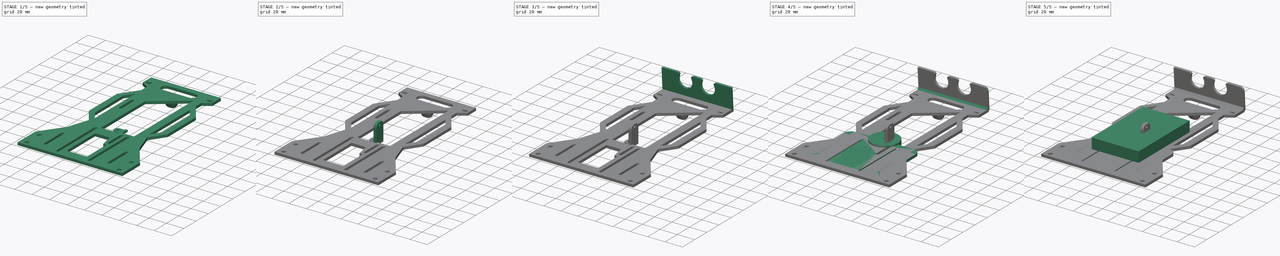
[diagram: build sequence overview — one tinted view per stage of 5, left to right]
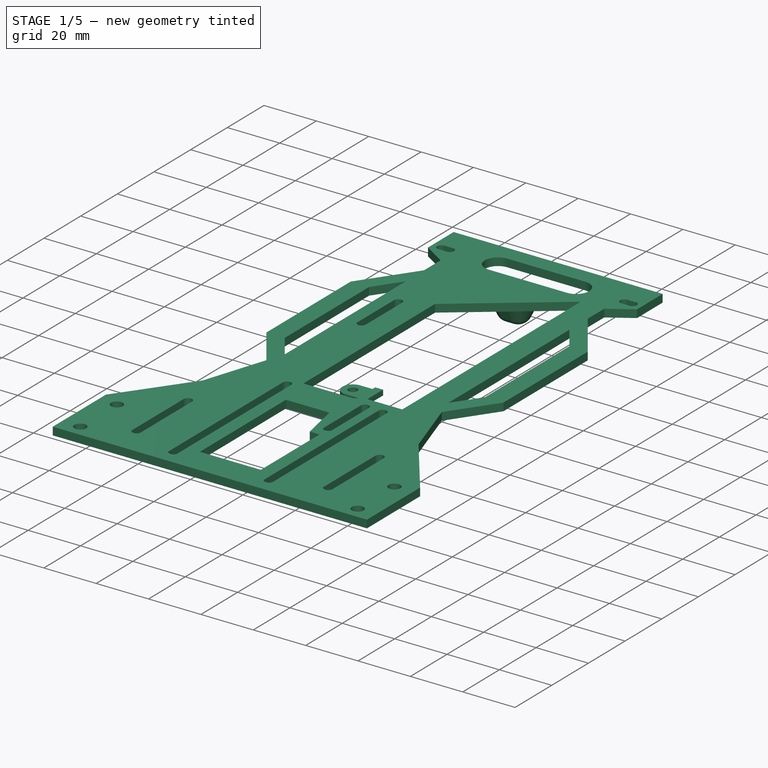
[diagram: stage 1 of 5 — iso view after this stage's code; geometry added in this stage tinted green]
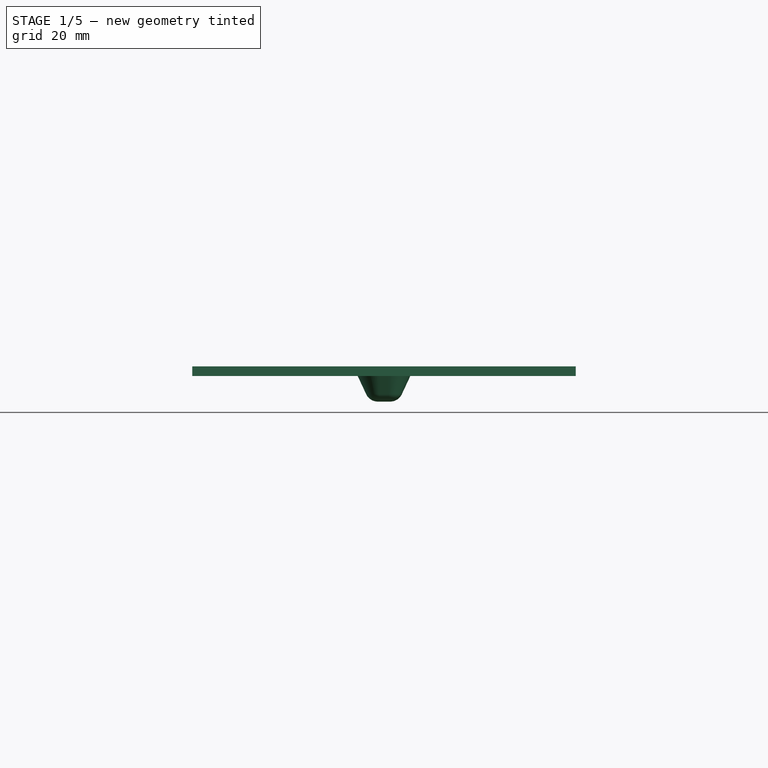
[diagram: stage 1 of 5 — front view after this stage's code; geometry added in this stage tinted green]
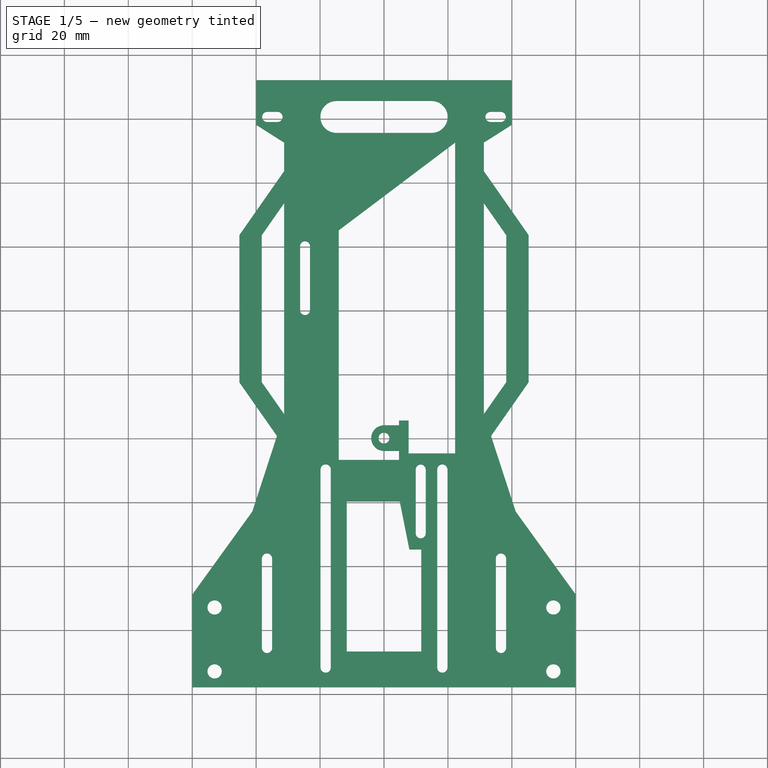
[diagram: stage 1 of 5 — top view after this stage's code; geometry added in this stage tinted green]
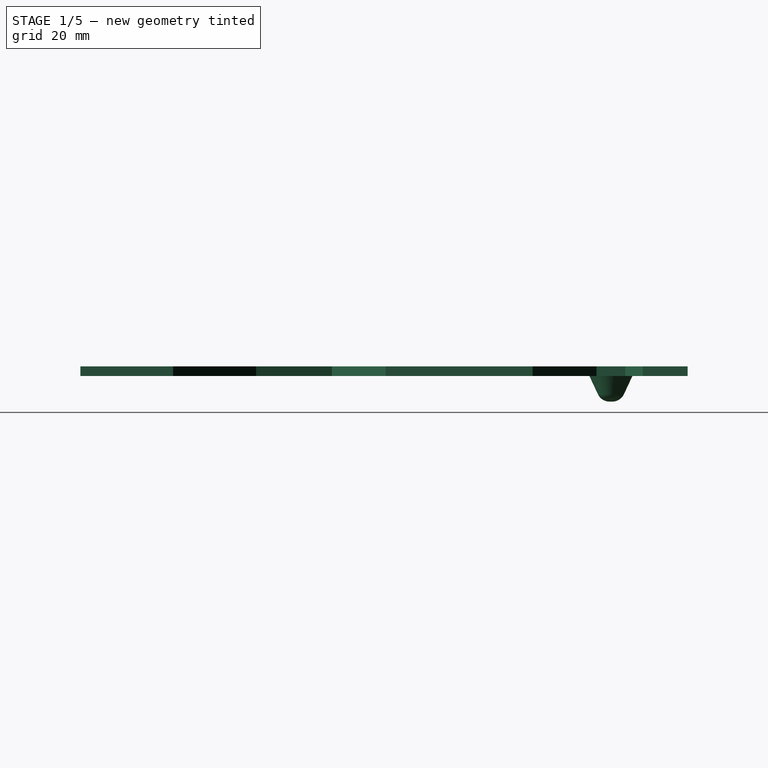
[diagram: stage 1 of 5 — right view after this stage's code; geometry added in this stage tinted green]
FCSTD DOCUMENT  (FreeCAD 0.18R4 (GitTag))
Label: chasi
License: All rights reserved
LicenseURL: http://en.wikipedia.org/wiki/All_rights_reserved
objects: Sketcher::SketchObject×14, PartDesign::Pad×9, PartDesign::Body×7, Part::Feature×5, PartDesign::Pocket×5, PartDesign::Fillet×5, PartDesign::Chamfer×5, PartDesign::PolarPattern×2, PartDesign::Draft×1
note: 67 computed .brp shape members not serialized (recipe doc carries the construction recipe); baked Part::Feature solids carry a one-line shape summary decoded from their .brp

FEATURE [Sketcher::SketchObject] Sketch
  MapMode = 5
  Support = -> [XY_Plane]
  sketch-geometry (120):
    g0: LineSegment StartX=-60 StartY=-78 StartZ=0 EndX=0 EndY=-78 EndZ=0
    g1: LineSegment StartX=60 StartY=-78 StartZ=0 EndX=60 EndY=-49 EndZ=0
    g2: LineSegment StartX=60 StartY=-49 StartZ=0 EndX=41.2 EndY=-23 EndZ=0
    g3: LineSegment StartX=41.2 StartY=-23 StartZ=0 EndX=33.4837 EndY=0.676734 EndZ=0
    g4: LineSegment StartX=33.4837 StartY=0.676734 StartZ=0 EndX=45.26 EndY=17.5 EndZ=0
    g5: LineSegment StartX=45.26 StartY=17.5 StartZ=0 EndX=45.26 EndY=63.5 EndZ=0
    g6: LineSegment StartX=45.26 StartY=63.5 StartZ=0 EndX=31.26 EndY=83.5 EndZ=0
    g7: LineSegment StartX=31.26 StartY=83.5 StartZ=0 EndX=31.26 EndY=92.5 EndZ=0
    g8: LineSegment StartX=31.26 StartY=92.5 StartZ=0 EndX=39.925 EndY=98 EndZ=0
    g9: LineSegment StartX=39.925 StartY=98 StartZ=0 EndX=39.925 EndY=112 EndZ=0
    g10: LineSegment StartX=39.925 StartY=112 StartZ=0 EndX=-39.925 EndY=112 EndZ=0
    g11: LineSegment StartX=-39.925 StartY=112 StartZ=0 EndX=-39.925 EndY=98 EndZ=0
    g12: LineSegment StartX=-39.925 StartY=98 StartZ=0 EndX=-31.26 EndY=92.5 EndZ=0
    g13: LineSegment StartX=-31.26 StartY=92.5 StartZ=0 EndX=-31.26 EndY=83.5 EndZ=0
    g14: LineSegment StartX=-31.26 StartY=83.5 StartZ=0 EndX=-45.26 EndY=63.5 EndZ=0
    g15: LineSegment StartX=-45.26 StartY=63.5 StartZ=0 EndX=-45.26 EndY=17.5 EndZ=0
    g16: LineSegment StartX=-45.26 StartY=17.5 StartZ=0 EndX=-33.4837 EndY=0.676734 EndZ=0
    g17: LineSegment StartX=-33.4837 StartY=0.676734 StartZ=0 EndX=-41.2 EndY=-23 EndZ=0
    g18: LineSegment StartX=-41.2 StartY=-23 StartZ=0 EndX=-60 EndY=-49 EndZ=0
    g19: LineSegment StartX=-60 StartY=-49 StartZ=0 EndX=-60 EndY=-78 EndZ=0
    g20: LineSegment [constr] StartX=-28 StartY=-32.5 StartZ=0 EndX=28 EndY=-32.5 EndZ=0
    g21: LineSegment [constr] StartX=28 StartY=-32.5 StartZ=0 EndX=28 EndY=92.5 EndZ=0
    g22: LineSegment [constr] StartX=28 StartY=92.5 StartZ=0 EndX=-28 EndY=92.5 EndZ=0
    g23: LineSegment [constr] StartX=-28 StartY=92.5 StartZ=0 EndX=-28 EndY=-32.5 EndZ=0
    g24: LineSegment [constr] StartX=-23.25 StartY=-66.821 StartZ=0 EndX=23.25 EndY=-66.821 EndZ=0
    g25: LineSegment [constr] StartX=23.25 StartY=-66.821 StartZ=0 EndX=23.25 EndY=-14.821 EndZ=0
    g26: LineSegment [constr] StartX=23.25 StartY=-14.821 StartZ=0 EndX=-23.25 EndY=-14.821 EndZ=0
    g27: LineSegment [constr] StartX=-23.25 StartY=-14.821 StartZ=0 EndX=-23.25 EndY=-66.821 EndZ=0
    g28: LineSegment [constr] StartX=-20.1861 StartY=79.528 StartZ=0 EndX=32.8139 EndY=79.528 EndZ=0
    g29: LineSegment [constr] StartX=32.8139 StartY=79.528 StartZ=0 EndX=32.8139 EndY=-3.47196 EndZ=0
    g30: LineSegment [constr] StartX=32.8139 StartY=-3.47196 StartZ=0 EndX=-20.1861 EndY=-3.47196 EndZ=0
    g31: LineSegment [constr] StartX=-20.1861 StartY=-3.47196 StartZ=0 EndX=-20.1861 EndY=79.528 EndZ=0
    g32: LineSegment [constr] StartX=-60 StartY=-78 StartZ=0 EndX=-41.2 EndY=-78 EndZ=0
    g33: LineSegment [constr] StartX=-41.2 StartY=-78 StartZ=0 EndX=-41.2 EndY=-7.75 EndZ=0
    g34: LineSegment [constr] StartX=-41.2 StartY=-7.75 StartZ=0 EndX=-60 EndY=-7.75 EndZ=0
    g35: LineSegment [constr] StartX=-60 StartY=-7.75 StartZ=0 EndX=-60 EndY=-78 EndZ=0
    g36: LineSegment [constr] StartX=41.2 StartY=-7.75 StartZ=0 EndX=60 EndY=-7.75 EndZ=0
    g37: LineSegment [constr] StartX=60 StartY=-7.75 StartZ=0 EndX=60 EndY=-78 EndZ=0
    g38: LineSegment [constr] StartX=60 StartY=-78 StartZ=0 EndX=41.2 EndY=-78 EndZ=0
    g39: LineSegment [constr] StartX=41.2 StartY=-78 StartZ=0 EndX=41.2 EndY=-7.75 EndZ=0
    g40: Circle [constr] CenterX=6.43 CenterY=62.75 CenterZ=0 NormalX=0 NormalY=0 NormalZ=1 AngleXU=0 Radius=1.56
    g41: Circle [constr] CenterX=-24.7 CenterY=50.05 CenterZ=0 NormalX=0 NormalY=0 NormalZ=1 AngleXU=0 Radius=1.56
    g42: Circle [constr] CenterX=11.49 CenterY=-10.5 CenterZ=0 NormalX=0 NormalY=0 NormalZ=1 AngleXU=0 Radius=1.56
    g43: LineSegment [constr] StartX=-37.5 StartY=110 StartZ=0 EndX=37.5 EndY=110 EndZ=0
    g44: LineSegment [constr] StartX=37.5 StartY=110 StartZ=0 EndX=37.5 EndY=98 EndZ=0
    g45: LineSegment [constr] StartX=37.5 StartY=98 StartZ=0 EndX=-37.5 EndY=98 EndZ=0
    g46: LineSegment [constr] StartX=-37.5 StartY=98 StartZ=0 EndX=-37.5 EndY=110 EndZ=0
    g47: Circle [constr] CenterX=-34.925 CenterY=100.5 CenterZ=0 NormalX=0 NormalY=0 NormalZ=1 AngleXU=0 Radius=1.6
    g48: Circle [constr] CenterX=34.925 CenterY=100.5 CenterZ=0 NormalX=0 NormalY=0 NormalZ=1 AngleXU=0 Radius=1.6
    g49: LineSegment [constr] StartX=32.5 StartY=-69.8 StartZ=0 EndX=68.7 EndY=-69.8 EndZ=0
    g50: LineSegment [constr] StartX=68.7 StartY=-69.8 StartZ=0 EndX=68.7 EndY=-63.8 EndZ=0
    g51: LineSegment [constr] StartX=68.7 StartY=-63.8 StartZ=0 EndX=32.5 EndY=-63.8 EndZ=0
    g52: LineSegment [constr] StartX=32.5 StartY=-63.8 StartZ=0 EndX=32.5 EndY=-69.8 EndZ=0
    g53: LineSegment [constr] StartX=-68.7 StartY=-69.8 StartZ=0 EndX=-32.5 EndY=-69.8 EndZ=0
    g54: LineSegment [constr] StartX=-32.5 StartY=-69.8 StartZ=0 EndX=-32.5 EndY=-63.8 EndZ=0
    g55: LineSegment [constr] StartX=-32.5 StartY=-63.8 StartZ=0 EndX=-68.7 EndY=-63.8 EndZ=0
    g56: LineSegment [constr] StartX=-68.7 StartY=-63.8 StartZ=0 EndX=-68.7 EndY=-69.8 EndZ=0
    g57: LineSegment [constr] StartX=32.5 StartY=-66.8 StartZ=0 EndX=68.7 EndY=-66.8 EndZ=0
    g58: ArcOfCircle CenterX=-24.7 CenterY=40.05 CenterZ=0 NormalX=0 NormalY=0 NormalZ=1 AngleXU=0 Radius=1.56 StartAngle=3.14159 EndAngle=6.28319
    g59: ArcOfCircle CenterX=-24.7 CenterY=60.05 CenterZ=0 NormalX=0 NormalY=0 NormalZ=1 AngleXU=0 Radius=1.56 StartAngle=-1.8e-15 EndAngle=3.14159
    g60: LineSegment StartX=-23.14 StartY=40.05 StartZ=0 EndX=-23.14 EndY=60.05 EndZ=0
    g61: LineSegment StartX=-26.26 StartY=40.05 StartZ=0 EndX=-26.26 EndY=60.05 EndZ=0
    g62: ArcOfCircle CenterX=11.49 CenterY=-9.82104 CenterZ=0 NormalX=0 NormalY=0 NormalZ=1 AngleXU=0 Radius=1.56 StartAngle=6e-16 EndAngle=3.14159
    g63: ArcOfCircle CenterX=11.49 CenterY=-29.821 CenterZ=0 NormalX=0 NormalY=0 NormalZ=1 AngleXU=0 Radius=1.56 StartAngle=3.14159 EndAngle=6.28319
    g64: LineSegment StartX=9.93 StartY=-9.82104 StartZ=0 EndX=9.93 EndY=-29.821 EndZ=0
    g65: LineSegment StartX=13.05 StartY=-9.82104 StartZ=0 EndX=13.05 EndY=-29.821 EndZ=0
    g66: LineSegment StartX=0 StartY=-78 StartZ=0 EndX=60 EndY=-78 EndZ=0
    g67: ArcOfCircle CenterX=-18.25 CenterY=-71.821 CenterZ=0 NormalX=0 NormalY=0 NormalZ=1 AngleXU=0 Radius=1.6 StartAngle=3.14159 EndAngle=6.28319
    g68: ArcOfCircle CenterX=-18.25 CenterY=-9.82104 CenterZ=0 NormalX=0 NormalY=0 NormalZ=1 AngleXU=0 Radius=1.6 StartAngle=0 EndAngle=3.14159
    g69: LineSegment StartX=-16.65 StartY=-71.821 StartZ=0 EndX=-16.65 EndY=-9.82104 EndZ=0
    g70: LineSegment StartX=-19.85 StartY=-71.821 StartZ=0 EndX=-19.85 EndY=-9.82104 EndZ=0
    g71: ArcOfCircle CenterX=18.25 CenterY=-9.82104 CenterZ=0 NormalX=0 NormalY=0 NormalZ=1 AngleXU=0 Radius=1.6 StartAngle=4e-16 EndAngle=3.14159
    g72: ArcOfCircle CenterX=18.25 CenterY=-71.821 CenterZ=0 NormalX=0 NormalY=0 NormalZ=1 AngleXU=0 Radius=1.6 StartAngle=3.14159 EndAngle=6.28319
    g73: LineSegment StartX=16.65 StartY=-9.82104 StartZ=0 EndX=16.65 EndY=-71.821 EndZ=0
    g74: LineSegment StartX=19.85 StartY=-9.82104 StartZ=0 EndX=19.85 EndY=-71.821 EndZ=0
    g75: ArcOfCircle CenterX=-14.925 CenterY=100.5 CenterZ=0 NormalX=0 NormalY=0 NormalZ=1 AngleXU=0 Radius=5 StartAngle=1.5708 EndAngle=4.71239
    g76: ArcOfCircle CenterX=14.925 CenterY=100.5 CenterZ=0 NormalX=0 NormalY=0 NormalZ=1 AngleXU=0 Radius=5 StartAngle=4.71239 EndAngle=7.85398
    g77: LineSegment StartX=-14.925 StartY=95.5 StartZ=0 EndX=14.925 EndY=95.5 EndZ=0
    g78: LineSegment StartX=-14.925 StartY=105.5 StartZ=0 EndX=14.925 EndY=105.5 EndZ=0
    g79: LineSegment StartX=-38.26 StartY=17.5 StartZ=0 EndX=-31.26 EndY=7.5 EndZ=0
    g80: LineSegment StartX=-31.26 StartY=7.5 StartZ=0 EndX=-31.26 EndY=73.5 EndZ=0
    g81: LineSegment StartX=-31.26 StartY=73.5 StartZ=0 EndX=-38.26 EndY=63.5 EndZ=0
    g82: LineSegment StartX=-38.26 StartY=63.5 StartZ=0 EndX=-38.26 EndY=17.5 EndZ=0
    g83: LineSegment StartX=31.26 StartY=73.5 StartZ=0 EndX=31.26 EndY=7.5 EndZ=0
    g84: LineSegment StartX=31.26 StartY=7.5 StartZ=0 EndX=38.26 EndY=17.5 EndZ=0
    g85: LineSegment StartX=38.26 StartY=17.5 StartZ=0 EndX=38.26 EndY=63.5 EndZ=0
    g86: LineSegment StartX=38.26 StartY=63.5 StartZ=0 EndX=31.26 EndY=73.5 EndZ=0
    g87: LineSegment StartX=-14.14 StartY=65.05 StartZ=0 EndX=-14.14 EndY=-6.82104 EndZ=0
    g88: LineSegment StartX=-14.14 StartY=-6.82104 StartZ=0 EndX=4.93 EndY=-6.82104 EndZ=0
    g89: LineSegment StartX=4.93 StartY=-6.82104 StartZ=0 EndX=7.93 EndY=-4.82104 EndZ=0
    g90: LineSegment StartX=7.93 StartY=-4.82104 StartZ=0 EndX=22.26 EndY=-4.82104 EndZ=0
    g91: LineSegment StartX=22.26 StartY=-4.82104 StartZ=0 EndX=22.26 EndY=92.5 EndZ=0
    g92: LineSegment StartX=22.26 StartY=92.5 StartZ=0 EndX=-14.14 EndY=65.05 EndZ=0
    g93: LineSegment StartX=-11.65 StartY=-66.821 StartZ=0 EndX=11.65 EndY=-66.821 EndZ=0
    g94: LineSegment StartX=11.65 StartY=-66.821 StartZ=0 EndX=11.65 EndY=-34.821 EndZ=0
    g95: LineSegment StartX=11.65 StartY=-34.821 StartZ=0 EndX=7.93 EndY=-34.821 EndZ=0
    g96: LineSegment StartX=-11.65 StartY=-19.821 StartZ=0 EndX=-11.65 EndY=-66.821 EndZ=0
    g97: LineSegment StartX=7.93 StartY=-34.821 StartZ=0 EndX=4.93 EndY=-19.821 EndZ=0
    g98: LineSegment StartX=4.93 StartY=-19.821 StartZ=0 EndX=-11.65 EndY=-19.821 EndZ=0
    g99: LineSegment [constr] StartX=-31.26 StartY=7.5 StartZ=0 EndX=-33.4837 EndY=0.676734 EndZ=0
    g100: ArcOfCircle CenterX=-33.325 CenterY=100.5 CenterZ=0 NormalX=0 NormalY=0 NormalZ=1 AngleXU=0 Radius=1.6 StartAngle=4.71239 EndAngle=7.85398
    g101: ArcOfCircle CenterX=-36.525 CenterY=100.5 CenterZ=0 NormalX=0 NormalY=0 NormalZ=1 AngleXU=0 Radius=1.6 StartAngle=1.5708 EndAngle=4.71239
    g102: LineSegment StartX=-33.325 StartY=102.1 StartZ=0 EndX=-36.525 EndY=102.1 EndZ=0
    g103: LineSegment StartX=-33.325 StartY=98.9 StartZ=0 EndX=-36.525 EndY=98.9 EndZ=0
    g104: ArcOfCircle CenterX=36.525 CenterY=100.5 CenterZ=0 NormalX=0 NormalY=0 NormalZ=1 AngleXU=0 Radius=1.6 StartAngle=4.71239 EndAngle=7.85398
    g105: ArcOfCircle CenterX=33.325 CenterY=100.5 CenterZ=0 NormalX=0 NormalY=0 NormalZ=1 AngleXU=0 Radius=1.6 StartAngle=1.5708 EndAngle=4.71239
    g106: LineSegment StartX=36.525 StartY=102.1 StartZ=0 EndX=33.325 EndY=102.1 EndZ=0
    g107: LineSegment StartX=36.525 StartY=98.9 StartZ=0 EndX=33.325 EndY=98.9 EndZ=0
    g108: Circle CenterX=-53 CenterY=-53 CenterZ=0 NormalX=0 NormalY=0 NormalZ=1 AngleXU=0 Radius=2.23853
    g109: Circle CenterX=-53 CenterY=-73 CenterZ=0 NormalX=0 NormalY=0 NormalZ=1 AngleXU=0 Radius=2.23853
    g110: Circle CenterX=53 CenterY=-53 CenterZ=0 NormalX=0 NormalY=0 NormalZ=1 AngleXU=0 Radius=2.23853
    g111: Circle CenterX=53 CenterY=-73 CenterZ=0 NormalX=0 NormalY=0 NormalZ=1 AngleXU=0 Radius=2.23853
    g112: ArcOfCircle CenterX=-36.6 CenterY=-37.6867 CenterZ=0 NormalX=0 NormalY=0 NormalZ=1 AngleXU=0 Radius=1.6 StartAngle=-1.8e-15 EndAngle=3.14159
    g113: ArcOfCircle CenterX=-36.6 CenterY=-65.6867 CenterZ=0 NormalX=0 NormalY=0 NormalZ=1 AngleXU=0 Radius=1.6 StartAngle=3.14159 EndAngle=6.28319
    g114: LineSegment StartX=-38.2 StartY=-37.6867 StartZ=0 EndX=-38.2 EndY=-65.6867 EndZ=0
    g115: LineSegment StartX=-35 StartY=-37.6867 StartZ=0 EndX=-35 EndY=-65.6867 EndZ=0
    g116: ArcOfCircle CenterX=36.6 CenterY=-37.6867 CenterZ=0 NormalX=0 NormalY=0 NormalZ=1 AngleXU=0 Radius=1.6 StartAngle=1.5e-15 EndAngle=3.14159
    g117: ArcOfCircle CenterX=36.6 CenterY=-65.6867 CenterZ=0 NormalX=0 NormalY=0 NormalZ=1 AngleXU=0 Radius=1.6 StartAngle=3.14159 EndAngle=6.28319
    g118: LineSegment StartX=35 StartY=-37.6867 StartZ=0 EndX=35 EndY=-65.6867 EndZ=0
    g119: LineSegment StartX=38.2 StartY=-37.6867 StartZ=0 EndX=38.2 EndY=-65.6867 EndZ=0
  constraints (315):
    c: Coincident(g66,g1)
    c: Coincident(g1,g2)
    c: Coincident(g2,g3)
    c: Coincident(g3,g4)
    c: Coincident(g4,g5)
    c: Coincident(g5,g6)
    c: Coincident(g6,g7)
    c: Coincident(g7,g8)
    c: Coincident(g8,g9)
    c: Coincident(g9,g10)
    c: Coincident(g10,g11)
    c: Coincident(g11,g12)
    c: Coincident(g12,g13)
    c: Coincident(g13,g14)
    c: Coincident(g14,g15)
    c: Coincident(g15,g16)
    c: Coincident(g16,g17)
    c: Coincident(g17,g18)
    c: Coincident(g18,g19)
    c: Coincident(g0,g19)
    c: Vertical(g19)
    c: Vertical(g1)
    c: Vertical(g5)
    c: Vertical(g15)
    c: Vertical(g11)
    c: Vertical(g9)
    c: Vertical(g7)
    c: Vertical(g13)
    c: Equal(g1,g19)
    c: Equal(g17,g3)
    c: Equal(g7,g13)
    c: Equal(g11,g9)
    c: Symmetric(g7,g12,g-2)
    c: Symmetric(g5,g14,g-2)
    c: Symmetric(g16,g3,g-2)
    c: Symmetric(g17,g2,g-2)
    c: Symmetric(g0,g66,g-2)
    c: Symmetric(g9,g10,g-2)
    c: Coincident(g20,g21)
    c: Coincident(g21,g22)
    c: Coincident(g22,g23)
    c: Coincident(g23,g20)
    c: Horizontal(g22)
    c: Vertical(g21)
    c: Vertical(g23)
    c: Distance(g21) = 125
    c: Distance(g20) = 56
    c: Symmetric(g20,g20,g-2)
    c: Equal(g15,g5)
    c: Coincident(g24,g25)
    c: Coincident(g25,g26)
    c: Coincident(g26,g27)
    c: Coincident(g27,g24)
    c: Horizontal(g26)
    c: Vertical(g25)
    c: Vertical(g27)
    c: Distance(g24) = 46.5
    c: Distance(g25) = 52
    c: Symmetric(g24,g24,g-2)
    c: Coincident(g28,g29)
    c: Coincident(g29,g30)
    c: Coincident(g30,g31)
    c: Coincident(g31,g28)
    c: Horizontal(g28)
    c: Vertical(g29)
    c: Vertical(g31)
    c: Distance(g29) = 83
    c: Distance(g28) = 53
    c: Coincident(g32,g33)
    c: Coincident(g33,g34)
    c: Coincident(g34,g35)
    c: Coincident(g35,g32)
    c: Horizontal(g32)
    c: Horizontal(g34)
    c: Vertical(g33)
    c: Vertical(g35)
    c: Coincident(g36,g37)
    c: Coincident(g37,g38)
    c: Coincident(g38,g39)
    c: Coincident(g39,g36)
    c: Horizontal(g36)
    c: Horizontal(g38)
    c: Vertical(g37)
    c: Vertical(g39)
    c: Distance(g33) = 70.25
    c: Equal(g33,g39)
    c: Equal(g38,g32)
    c: Symmetric(g32,g38,g-2)
    c: Distance(g32) = 18.8
    c: Equal(g41,g42)
    c: Equal(g42,g40)
    c: Radius(g41) = 1.56
    c: DistanceY(g20,g42) = 22
    c: DistanceY(g20,g41) = 82.55
    c: DistanceY(g20,g40) = 95.25
    c: DistanceX(g42,g20) = 16.51
    c: DistanceX(g41,g20) = 52.7
    c: DistanceX(g40,g20) = 21.57
    c: Coincident(g43,g44)
    c: Coincident(g45,g46)
    c: Coincident(g46,g43)
    c: Horizontal(g43)
    c: Vertical(g44)
    c: Vertical(g46)
    c: Distance(g47,g48) = 69.85
    c: Symmetric(g48,g47,g-2)
    c: Equal(g48,g47)
    c: Radius(g47) = 1.6
    c: Symmetric(g44,g45,g-2)
    c: Distance(g45) = 75
    c: Coincident(g45,g44)
    c: Distance(g44) = 12
    c: DistanceY(g44,g48) = 2.5
    c: Coincident(g49,g50)
    c: Coincident(g50,g51)
    c: Coincident(g51,g52)
    c: Coincident(g52,g49)
    c: Horizontal(g49)
    c: Vertical(g50)
    c: Vertical(g52)
    c: Coincident(g53,g54)
    c: Coincident(g54,g55)
    c: Coincident(g55,g56)
    c: Coincident(g56,g53)
    c: Horizontal(g53)
    c: Horizontal(g55)
    c: Vertical(g54)
    c: Vertical(g56)
    c: Symmetric(g54,g51,g-2)
    c: Symmetric(g49,g53,g-2)
    c: Symmetric(g49,g51,g57)
    c: DistanceY(g38,g57) = 11.2
    c: Horizontal(g51)
    c: DistanceX(g37,g49) = 8.7
    c: PointOnObject(g57,g50)
    c: DistanceX(g49,g38) = 8.7
    c: Equal(g57,g51)
    c: Coincident(g37,g66)
    c: Tangent(g58,g61) = 1.5708
    c: Tangent(g58,g60) = -1.5708
    c: Tangent(g60,g59) = -1.5708
    c: Tangent(g61,g59) = 1.5708
    c: Vertical(g60)
    c: Equal(g58,g59)
    c: Tangent(g62,g65) = 1.5708
    c: Tangent(g62,g64) = -1.5708
    c: Tangent(g64,g63) = -1.5708
    c: Tangent(g65,g63) = 1.5708
    c: Vertical(g64)
    c: Equal(g62,g63)
    c: Tangent(g60,g41)
    c: Tangent(g61,g41)
    c: Distance(g60) = 20
    c: Tangent(g42,g65)
    c: Tangent(g42,g64)
    c: Distance(g65) = 20
    c: Distance(g50) = 6
    c: Distance(g0,g1) = 120
    c: Tangent(g67,g70) = 1.5708
    c: Tangent(g67,g69) = -1.5708
    c: Tangent(g69,g68) = -1.5708
    c: Tangent(g70,g68) = 1.5708
    c: Vertical(g69)
    c: Equal(g67,g68)
    c: Tangent(g71,g74) = 1.5708
    c: Tangent(g71,g73) = -1.5708
    c: Tangent(g73,g72) = -1.5708
    c: Tangent(g74,g72) = 1.5708
    c: Vertical(g73)
    c: Equal(g71,g72)
    c: Radius(g72) = 1.6
    c: Equal(g67,g72)
    c: Symmetric(g67,g72,g-2)
    c: Equal(g69,g73)
    c: DistanceX(g26,g68) = 5
    c: DistanceY(g26,g68) = 5
    c: DistanceY(g67,g24) = 5
    c: Tangent(g75,g78) = 1.5708
    c: Tangent(g75,g77) = -1.5708
    c: Tangent(g77,g76) = -1.5708
    c: Tangent(g78,g76) = 1.5708
    c: Equal(g75,g76)
    c: Symmetric(g76,g75,g-2)
    c: Radius(g76) = 5
    c: Horizontal(g76,g47)
    c: Coincident(g79,g80)
    c: Coincident(g80,g81)
    c: Coincident(g81,g82)
    c: Coincident(g82,g79)
    c: Coincident(g83,g84)
    c: Coincident(g84,g85)
    c: Coincident(g85,g86)
    c: Coincident(g86,g83)
    c: Parallel(g86,g6)
    c: Parallel(g84,g4)
    c: Vertical(g85)
    c: Vertical(g83)
    c: Vertical(g82)
    c: Parallel(g81,g14)
    c: Parallel(g79,g16)
    c: Symmetric(g83,g80,g-2)
    c: Symmetric(g83,g79,g-2)
    c: Vertical(g80,g13)
    c: DistanceY(g83,g6) = 10
    c: Horizontal(g81,g14)
    c: Horizontal(g79,g15)
    c: Horizontal(g84,g4)
    c: DistanceX(g80,g58) = 5
    c: Coincident(g87,g88)
    c: Coincident(g88,g89)
    c: Coincident(g89,g90)
    c: Coincident(g90,g91)
    c: Coincident(g91,g92)
    c: Coincident(g92,g87)
    c: Coincident(g93,g94)
    c: Coincident(g94,g95)
    c: Coincident(g96,g93)
    c: Horizontal(g95)
    c: Vertical(g94)
    c: Vertical(g96)
    c: Symmetric(g93,g93,g-2)
    c: DistanceX(g93,g72) = 5
    c: DistanceY(g72,g93) = 5
    c: DistanceY(g94,g63) = 5
    c: Coincident(g97,g98)
    c: Coincident(g97,g95)
    c: Coincident(g98,g96)
    c: DistanceX(g97,g63) = 5
    c: DistanceX(g95,g63) = 2
    c: DistanceX(g88,g62) = 5
    c: Horizontal(g90)
    c: DistanceX(g89,g62) = 2
    c: Vertical(g91)
    c: DistanceY(g62,g89) = 5
    c: Horizontal(g88)
    c: DistanceX(g90,g83) = 9
    c: DistanceX(g59,g87) = 9
    c: Vertical(g87)
    c: Horizontal(g7,g91)
    c: DistanceY(g59,g87) = 5
    c: Parallel(g99,g17)
    c: Coincident(g16,g99)
    c: Coincident(g79,g99)
    c: DistanceY(g83,g84) = 10
    c: DistanceY(g85,g83) = 10
    c: PointOnObject(g17,g33)
    c: DistanceY(g0,g17) = 55
    c: Horizontal(g71,g62)
    c: DistanceX(g85,g5) = 7
    c: Horizontal(g91,g21)
    c: DistanceX(g11,g47) = 5
    c: DistanceY(g43,g10) = 2
    c: DistanceY(g21,g76) = 3
    c: DistanceY(g1,g9) = 190
    c: DistanceY(g1,g-1) = 78
    c: Horizontal(g8,g44)
    c: Distance(g48,g76) = 20
    c: Distance(g85) = 46
    c: Distance(g7) = 9
    c: DistanceY(g41,g59) = 10
    c: DistanceY(g97,g88) = 13
    c: Horizontal(g98)
    c: Distance(g1) = 29
    c: Tangent(g100,g103) = 1.5708
    c: Tangent(g100,g102) = -1.5708
    c: Tangent(g102,g101) = -1.5708
    c: Tangent(g103,g101) = 1.5708
    c: Horizontal(g102)
    c: Equal(g100,g101)
    c: Tangent(g104,g107) = 1.5708
    c: Tangent(g104,g106) = -1.5708
    c: Tangent(g106,g105) = -1.5708
    c: Tangent(g107,g105) = 1.5708
    c: Horizontal(g106)
    c: Equal(g104,g105)
    c: Tangent(g48,g106)
    c: Tangent(g107,g48)
    c: PointOnObject(g104,g48)
    c: PointOnObject(g105,g48)
    c: Tangent(g103,g47)
    c: Tangent(g102,g47)
    c: PointOnObject(g101,g47)
    c: PointOnObject(g100,g47)
    c: Equal(g110,g111)
    c: Equal(g111,g108)
    c: Equal(g108,g109)
    c: Vertical(g108,g109)
    c: Distance(g109,g108) = 20
    c: DistanceX(g0,g109) = 7
    c: DistanceX(g111,g1) = 7
    c: Vertical(g110,g111)
    c: Distance(g110,g111) = 20
    c: Horizontal(g109,g111)
    c: DistanceY(g0,g109) = 5
    c: Tangent(g0,g66) = -1.5708
    c: PointOnObject(g0,g-2)
    c: Tangent(g112,g115) = 1.5708
    c: Tangent(g112,g114) = -1.5708
    c: Tangent(g114,g113) = -1.5708
    c: Tangent(g115,g113) = 1.5708
    c: Vertical(g114)
    c: Equal(g112,g113)
    c: Tangent(g116,g119) = 1.5708
    c: Tangent(g116,g118) = -1.5708
    c: Tangent(g118,g117) = -1.5708
    c: Tangent(g119,g117) = 1.5708
    c: Vertical(g118)
    c: Equal(g116,g117)
    c: Equal(g116,g112)
    c: DistanceX(g0,g113) = 21.8
    c: Radius(g113) = 1.6
    c: Symmetric(g117,g113,g-2)
    c: Equal(g118,g115)
    c: Distance(g115) = 28
    c: DistanceY(g62,g88) = 3
FEATURE [PartDesign::Pad] Pad
  Length = 3
  Length2 = 100
  Profile = -> Sketch
  Type = 0
FEATURE [PartDesign::Body] Body003  label="EL"
  Group = -> [Sketch004,Pad003,Sketch005,Pocket001,PolarPattern001]
  Origin = -> Origin003
  Placement = pos=(-35,-67,14) rot=(0,1,0;1.5708rad)
  Tip = -> PolarPattern001
FEATURE [Sketcher::SketchObject] Sketch006
  MapMode = 5
  Placement = pos=(0,0,0) rot=(1,0,0;3.14159rad)
  Support = -> [Pad]
  sketch-geometry (4):
    g0: ArcOfCircle CenterX=-1.5 CenterY=-88 CenterZ=0 NormalX=0 NormalY=0 NormalZ=1 AngleXU=0 Radius=3 StartAngle=1.5708 EndAngle=4.71239
    g1: ArcOfCircle CenterX=1.5 CenterY=-88 CenterZ=0 NormalX=0 NormalY=0 NormalZ=1 AngleXU=0 Radius=3 StartAngle=4.71239 EndAngle=7.85398
    g2: LineSegment StartX=-1.5 StartY=-91 StartZ=0 EndX=1.5 EndY=-91 EndZ=0
    g3: LineSegment StartX=-1.5 StartY=-85 StartZ=0 EndX=1.5 EndY=-85 EndZ=0
  constraints (9):
    c: Tangent(g0,g3) = 1.5708
    c: Tangent(g0,g2) = -1.5708
    c: Tangent(g2,g1) = -1.5708
    c: Tangent(g3,g1) = 1.5708
    c: Equal(g0,g1)
    c: Symmetric(g1,g0,g-2)
    c: Distance(g3) = 3
    c: Radius(g1) = 3
    c: DistanceY(g1,g-1) = 85
FEATURE [PartDesign::Pad] Pad004
  BaseFeature = -> Pad
  Length = 8
  Length2 = 100
  Profile = -> Sketch006
  Type = 0
FEATURE [PartDesign::Draft] Draft
  Angle = 25
  Base = -> Pad004 [Face38]
  BaseFeature = -> Pad004
  NeutralPlane = -> Pad004 [Face88]
FEATURE [PartDesign::Body] Body005  label="sujeta_US"
  Group = -> [Sketch008,Pad006,Sketch009,Pocket002,Sketch010,Pocket003,Fillet001,Fillet002,Fillet003,Chamfer,Chamfer001]
  Origin = -> Origin005
  Placement = pos=(0,0,3) rot=(0,0,1;0rad)
  Tip = -> Chamfer001
FEATURE [Sketcher::SketchObject] Sketch011
  MapMode = 5
  Support = -> [XY_Plane006]
  sketch-geometry (13):
    g0: Circle CenterX=0 CenterY=0 CenterZ=0 NormalX=0 NormalY=0 NormalZ=1 AngleXU=0 Radius=1.7
    g1: LineSegment StartX=0 StartY=-4 StartZ=0 EndX=4.7 EndY=-4 EndZ=0
    g2: LineSegment StartX=7.7 StartY=-7 StartZ=0 EndX=7.7 EndY=5.5 EndZ=0
    g3: LineSegment StartX=4.7 StartY=4 StartZ=0 EndX=0 EndY=4 EndZ=0
    g4: ArcOfCircle CenterX=0 CenterY=0 CenterZ=0 NormalX=0 NormalY=0 NormalZ=1 AngleXU=0 Radius=4 StartAngle=1.5708 EndAngle=4.71239
    g5: LineSegment StartX=7.7 StartY=-7 StartZ=0 EndX=4.7 EndY=-7 EndZ=0
    g6: LineSegment StartX=4.7 StartY=-7 StartZ=0 EndX=4.7 EndY=-4 EndZ=0
    g7: LineSegment [constr] StartX=7.7 StartY=-0.15 StartZ=0 EndX=15.7 EndY=-0.15 EndZ=0
    g8: LineSegment [constr] StartX=15.7 StartY=-0.15 StartZ=0 EndX=15.7 EndY=-3.15 EndZ=0
    g9: LineSegment [constr] StartX=15.7 StartY=-3.15 StartZ=0 EndX=7.7 EndY=-3.15 EndZ=0
    g10: LineSegment [constr] StartX=7.7 StartY=-3.15 StartZ=0 EndX=7.7 EndY=-0.15 EndZ=0
    g11: LineSegment StartX=4.7 StartY=4 StartZ=0 EndX=4.7 EndY=5.5 EndZ=0
    g12: LineSegment StartX=4.7 StartY=5.5 StartZ=0 EndX=7.7 EndY=5.5 EndZ=0
  constraints (36):
    c: Horizontal(g1)
    c: Horizontal(g3)
    c: Vertical(g2)
    c: DistanceX(g0,g2) = 7.7
    c: Coincident(g0,g4)
    c: Radius(g0) = 1.7
    c: Tangent(g3,g4) = -1.5708
    c: Tangent(g1,g4) = -1.5708
    c: Radius(g4) = 4
    c: Coincident(g5,g6)
    c: Vertical(g6)
    c: Horizontal(g5)
    c: Coincident(g1,g6)
    c: Coincident(g5,g2)
    c: Coincident(g7,g8)
    c: Coincident(g8,g9)
    c: Coincident(g9,g10)
    c: Coincident(g10,g7)
    c: Horizontal(g7)
    c: Horizontal(g9)
    c: Vertical(g8)
    c: Vertical(g10)
    c: DistanceY(g7,g0) = 0.15
    c: PointOnObject(g7,g2)
    c: Distance(g7) = 8
    c: Distance(g8) = 3
    c: Distance(g5) = 3
    c: Distance(g6) = 3
    c: Coincident(g0,g-1)
    c: Coincident(g11,g12)
    c: Coincident(g2,g12)
    c: Coincident(g3,g11)
    c: Horizontal(g12)
    c: Vertical(g11)
    c: Vertical(g3,g1)
    c: Distance(g11) = 1.5
FEATURE [PartDesign::Pad] Pad007  label="Pad009"
  Length = 2
  Length2 = 100
  Profile = -> Sketch011
  Type = 0
FEATURE [PartDesign::Body] Body006
  Group = -> [Sketch011,Pad007,Sketch012,Pad008,Sketch013,Pocket004,Fillet007,Chamfer003,Chamfer004,Chamfer005]
  Origin = -> Origin006
  Placement = pos=(33,-46,3) rot=(0,0,1;0rad)
  Tip = -> Chamfer005
FEATURE [PartDesign::Fillet] Fillet
  Base = -> Draft [Face88]
  BaseFeature = -> Draft
  Radius = 4
FEATURE [PartDesign::Body] Body  label="botton_chasis"
  Group = -> [Sketch,Pad,Sketch006,Pad004,Draft,Fillet]
  Origin = -> Origin
  Tip = -> Fillet
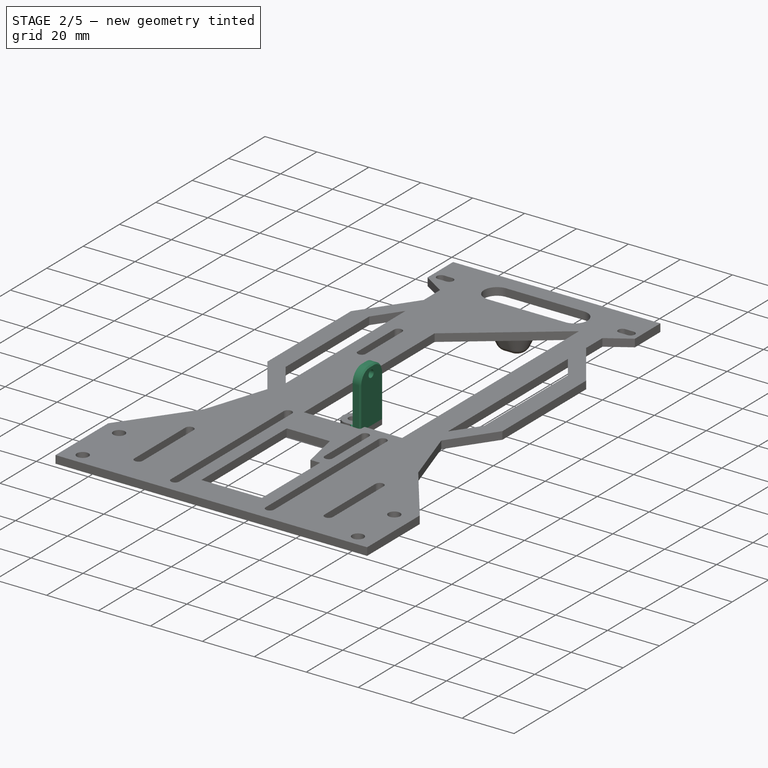
[diagram: stage 2 of 5 — iso view after this stage's code; geometry added in this stage tinted green]
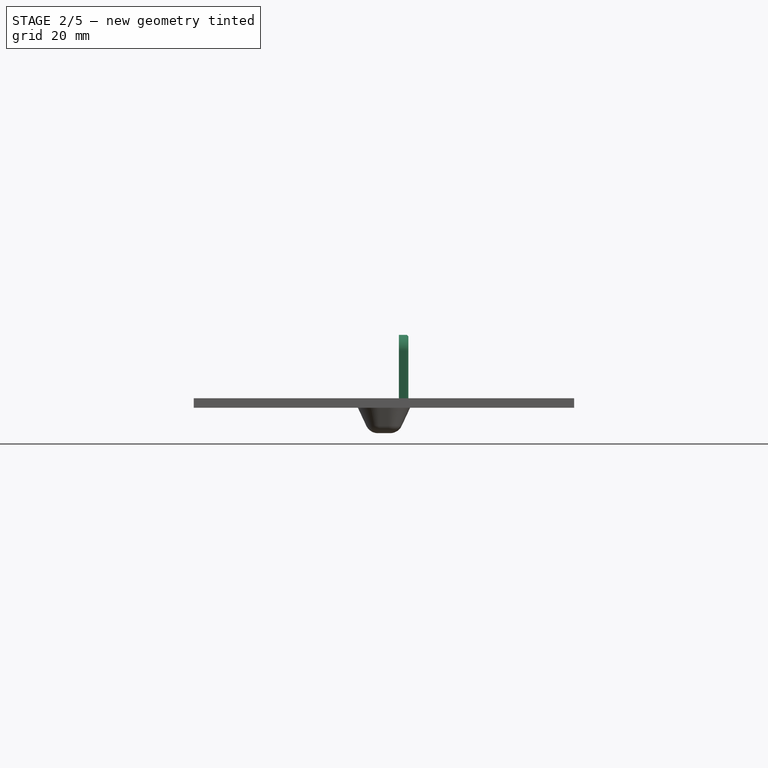
[diagram: stage 2 of 5 — front view after this stage's code; geometry added in this stage tinted green]
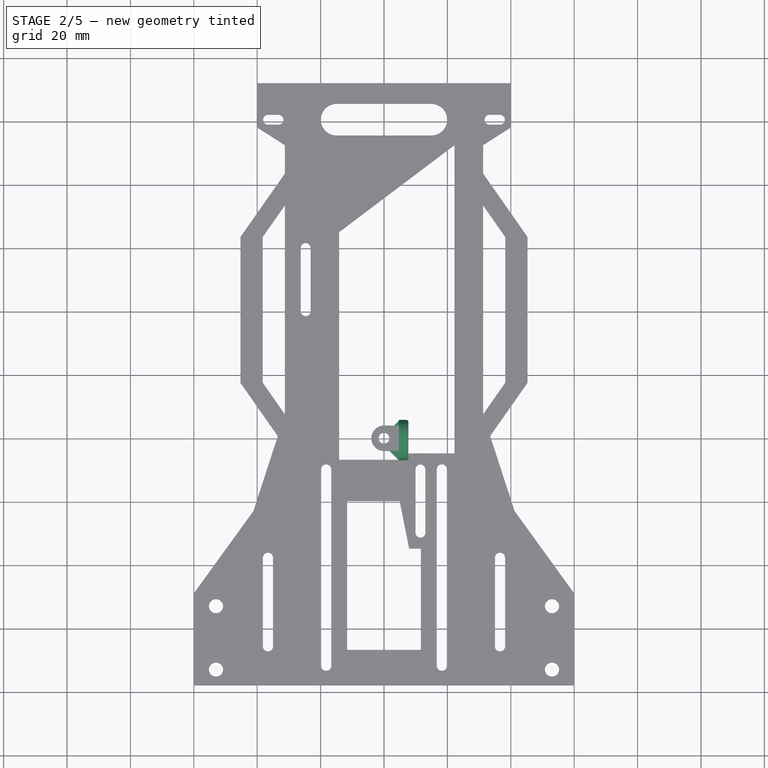
[diagram: stage 2 of 5 — top view after this stage's code; geometry added in this stage tinted green]
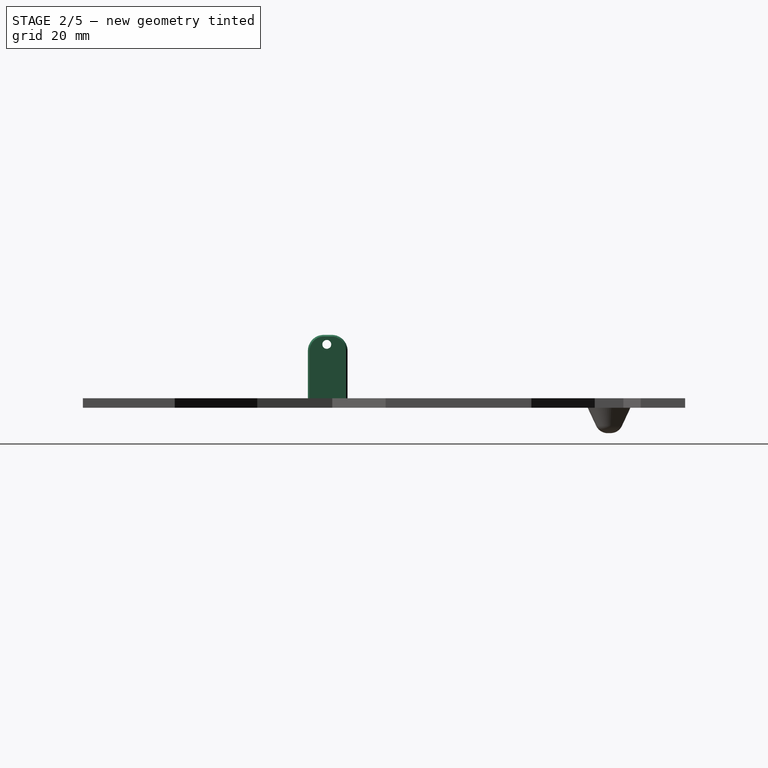
[diagram: stage 2 of 5 — right view after this stage's code; geometry added in this stage tinted green]
FEATURE [Sketcher::SketchObject] Sketch012
  ExternalGeometry = -> [Pad007]
  MapMode = 5
  Placement = pos=(0,0,2) rot=(0,0,1;0rad)
  Support = -> [Pad007]
  sketch-geometry (4):
    g0: LineSegment StartX=7.7 StartY=5.5 StartZ=0 EndX=4.7 EndY=5.5 EndZ=0
    g1: LineSegment StartX=4.7 StartY=5.5 StartZ=0 EndX=4.7 EndY=-7 EndZ=0
    g2: LineSegment StartX=4.7 StartY=-7 StartZ=0 EndX=7.7 EndY=-7 EndZ=0
    g3: LineSegment StartX=7.7 StartY=-7 StartZ=0 EndX=7.7 EndY=5.5 EndZ=0
  constraints (10):
    c: Coincident(g0,g1)
    c: Coincident(g1,g2)
    c: Coincident(g2,g3)
    c: Coincident(g3,g0)
    c: Horizontal(g0)
    c: Horizontal(g2)
    c: Vertical(g1)
    c: Vertical(g3)
    c: Coincident(g0,g-3)
    c: Coincident(g1,g-4)
FEATURE [PartDesign::Pad] Pad008  label="Pad010"
  BaseFeature = -> Pad007
  Length = 21
  Length2 = 100
  Profile = -> Sketch012
  Type = 0
FEATURE [Sketcher::SketchObject] Sketch013
  MapMode = 5
  Placement = pos=(4.7,0,0) rot=(0.57735,-0.57735,-0.57735;2.0944rad)
  Support = -> [Pad008]
  sketch-geometry (1):
    g0: Circle CenterX=1.05 CenterY=20 CenterZ=0 NormalX=0 NormalY=0 NormalZ=1 AngleXU=0 Radius=1.4
  constraints (3):
    c: DistanceY(g-1,g0) = 20
    c: Radius(g0) = 1.4
    c: DistanceX(g-1,g0) = 1.05
FEATURE [PartDesign::Pocket] Pocket004
  BaseFeature = -> Pad008
  Length = 5
  Length2 = 100
  Profile = -> Sketch013
  Type = 0
FEATURE [PartDesign::Fillet] Fillet007
  Base = -> Pocket004 [Edge34,Edge35]
  BaseFeature = -> Pocket004
  Radius = 5
FEATURE [PartDesign::Chamfer] Chamfer003
  Base = -> Fillet007 [Edge15]
  BaseFeature = -> Fillet007
  Size = 1.499
FEATURE [PartDesign::Chamfer] Chamfer004
  Base = -> Chamfer003 [Edge33]
  BaseFeature = -> Chamfer003
  Size = 2.9999
FEATURE [PartDesign::Chamfer] Chamfer005
  Base = -> Chamfer004 [Edge48]
  BaseFeature = -> Chamfer004
  Size = 0.5
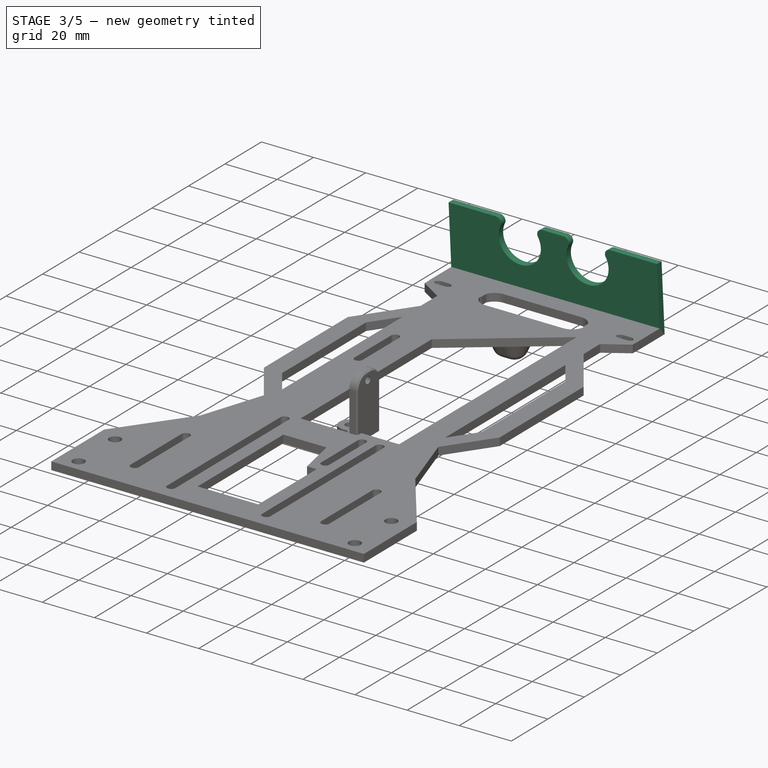
[diagram: stage 3 of 5 — iso view after this stage's code; geometry added in this stage tinted green]
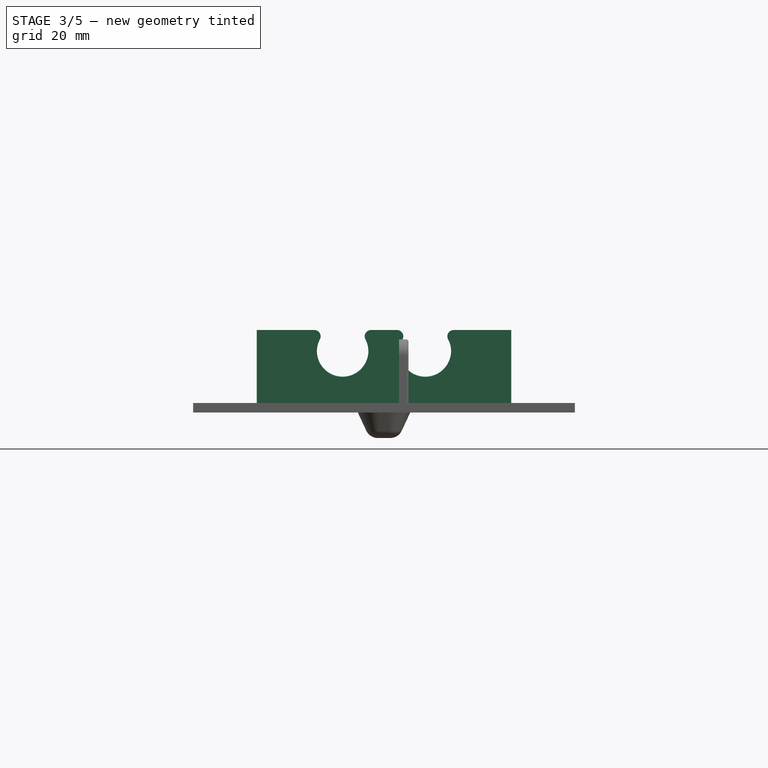
[diagram: stage 3 of 5 — front view after this stage's code; geometry added in this stage tinted green]
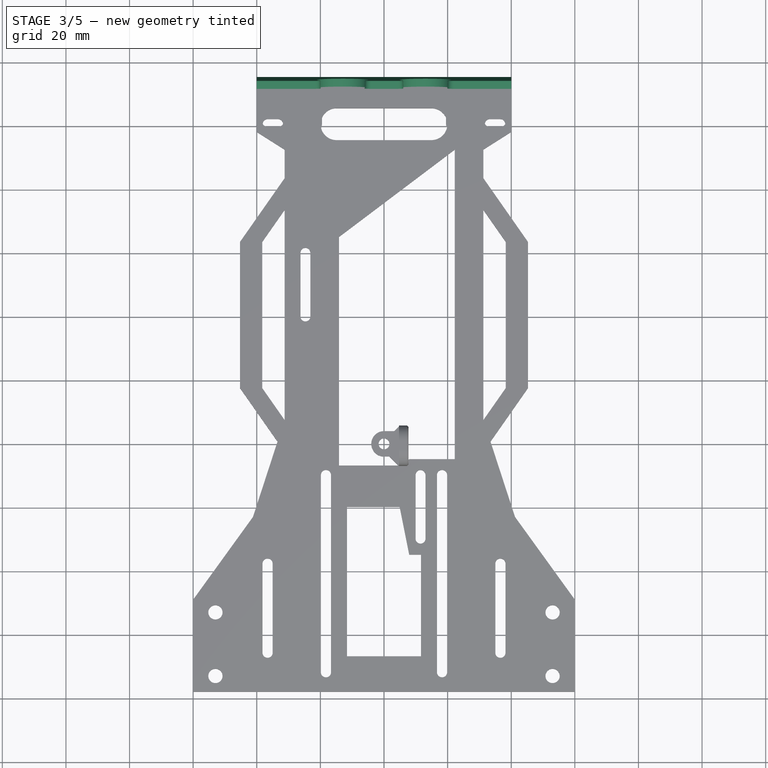
[diagram: stage 3 of 5 — top view after this stage's code; geometry added in this stage tinted green]
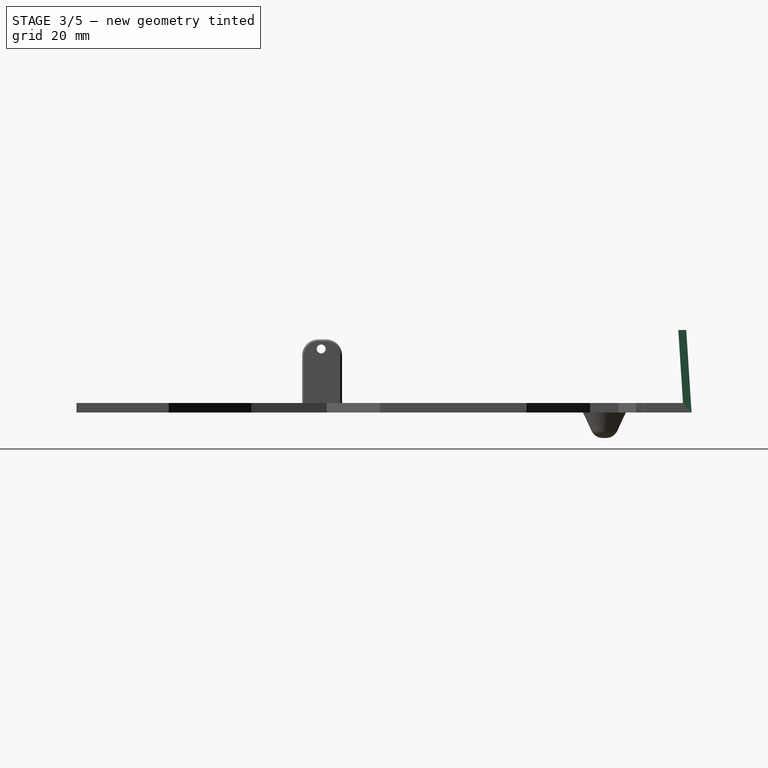
[diagram: stage 3 of 5 — right view after this stage's code; geometry added in this stage tinted green]
FEATURE [PartDesign::Body] Body004  label="top_chasis"
  Group = -> [Sketch007,Pad005]
  Origin = -> Origin004
  Placement = pos=(0,0,53) rot=(0,0,1;0rad)
  Tip = -> Pad005
FEATURE [Sketcher::SketchObject] Sketch008
  MapMode = 5
  Placement = pos=(0,0,0) rot=(0.57735,0.57735,0.57735;2.0944rad)
  Support = -> [YZ_Plane005]
  sketch-geometry (7):
    g0: LineSegment [constr] StartX=-67.0894 StartY=-16.3654 StartZ=0 EndX=134.149 EndY=-3.37664 EndZ=0
    g1: LineSegment StartX=97.7013 StartY=0 StartZ=0 EndX=115.395 EndY=0 EndZ=0
    g2: LineSegment StartX=115.395 StartY=0 StartZ=0 EndX=113.72 EndY=25.9522 EndZ=0
    g3: LineSegment StartX=113.72 StartY=25.9522 StartZ=0 EndX=111.22 EndY=25.9522 EndZ=0
    g4: LineSegment StartX=111.22 StartY=25.9522 StartZ=0 EndX=112.701 EndY=3 EndZ=0
    g5: LineSegment StartX=112.701 StartY=3 StartZ=0 EndX=97.7013 EndY=3 EndZ=0
    g6: LineSegment StartX=97.7013 StartY=3 StartZ=0 EndX=97.7013 EndY=0 EndZ=0
  constraints (17):
    c: Coincident(g1,g2)
    c: Coincident(g2,g3)
    c: Coincident(g3,g4)
    c: Coincident(g4,g5)
    c: Coincident(g5,g6)
    c: Coincident(g1,g6)
    c: Vertical(g6)
    c: Horizontal(g1)
    c: Horizontal(g5)
    c: Perpendicular(g0,g2)
    c: Parallel(g2,g4)
    c: Distance(g6) = 3
    c: Horizontal(g3)
    c: Distance(g3) = 2.5
    c: Distance(g5) = 15
    c: Distance(g4) = 23
    c: PointOnObject(g1,g-1)
FEATURE [PartDesign::Pad] Pad006  label="Pad008"
  Length = 80
  Length2 = 100
  Midplane = true
  Placement = pos=(0,0,0) rot=(0.57735,0.57735,0.57735;2.0944rad)
  Profile = -> Sketch008
  Type = 0
FEATURE [Sketcher::SketchObject] Sketch009
  ExternalGeometry = -> [Pad006]
  MapMode = 5
  Placement = pos=(-8e-16,1.3e-15,3) rot=(0,0,-1;1.5708rad)
  Support = -> [Pad006]
  sketch-geometry (14):
    g0: LineSegment StartX=-93.7013 StartY=-19.5 StartZ=0 EndX=-107.701 EndY=-19.5 EndZ=0
    g1: LineSegment StartX=-107.701 StartY=-19.5 StartZ=0 EndX=-107.701 EndY=19.5 EndZ=0
    g2: LineSegment StartX=-107.701 StartY=19.5 StartZ=0 EndX=-93.7013 EndY=19.5 EndZ=0
    g3: LineSegment StartX=-93.7013 StartY=19.5 StartZ=0 EndX=-93.7013 EndY=-19.5 EndZ=0
    g4: ArcOfCircle CenterX=-101.401 CenterY=-36.625 CenterZ=0 NormalX=0 NormalY=0 NormalZ=1 AngleXU=0 Radius=1.7 StartAngle=3.14159 EndAngle=6.28319
    g5: ArcOfCircle CenterX=-101.401 CenterY=-33.225 CenterZ=0 NormalX=0 NormalY=0 NormalZ=1 AngleXU=0 Radius=1.7 StartAngle=-9e-16 EndAngle=3.14159
    g6: LineSegment StartX=-99.7013 StartY=-36.625 StartZ=0 EndX=-99.7013 EndY=-33.225 EndZ=0
    g7: LineSegment StartX=-103.101 StartY=-36.625 StartZ=0 EndX=-103.101 EndY=-33.225 EndZ=0
    g8: ArcOfCircle CenterX=-101.401 CenterY=33.225 CenterZ=0 NormalX=0 NormalY=0 NormalZ=1 AngleXU=0 Radius=1.7 StartAngle=3.14159 EndAngle=6.28319
    g9: ArcOfCircle CenterX=-101.401 CenterY=36.625 CenterZ=0 NormalX=0 NormalY=0 NormalZ=1 AngleXU=0 Radius=1.7 StartAngle=1.5e-15 EndAngle=3.14159
    g10: LineSegment StartX=-99.7013 StartY=33.225 StartZ=0 EndX=-99.7013 EndY=36.625 EndZ=0
    g11: LineSegment StartX=-103.101 StartY=33.225 StartZ=0 EndX=-103.101 EndY=36.625 EndZ=0
    g12: Circle [constr] CenterX=-101.401 CenterY=-34.925 CenterZ=0 NormalX=0 NormalY=0 NormalZ=1 AngleXU=0 Radius=1.7
    g13: Circle [constr] CenterX=-101.401 CenterY=34.925 CenterZ=0 NormalX=0 NormalY=0 NormalZ=1 AngleXU=0 Radius=1.7
  constraints (36):
    c: Coincident(g0,g1)
    c: Coincident(g1,g2)
    c: Coincident(g2,g3)
    c: Coincident(g3,g0)
    c: Horizontal(g0)
    c: Horizontal(g2)
    c: Vertical(g1)
    c: Tangent(g4,g7) = 1.5708
    c: Tangent(g4,g6) = -1.5708
    c: Tangent(g6,g5) = -1.5708
    c: Tangent(g7,g5) = 1.5708
    c: Vertical(g6)
    c: Equal(g4,g5)
    c: Tangent(g8,g11) = 1.5708
    c: Tangent(g8,g10) = -1.5708
    c: Tangent(g10,g9) = -1.5708
    c: Tangent(g11,g9) = 1.5708
    c: Vertical(g10)
    c: Equal(g8,g9)
    c: Symmetric(g2,g0,g-1)
    c: Radius(g4) = 1.7
    c: Equal(g8,g5)
    c: Equal(g6,g10)
    c: Symmetric(g4,g9,g-1)
    c: Tangent(g6,g12)
    c: Tangent(g12,g7)
    c: Tangent(g10,g13)
    c: Tangent(g13,g11)
    c: Distance(g13,g12) = 69.85
    c: PointOnObject(g4,g12)
    c: PointOnObject(g5,g12)
    c: PointOnObject(g8,g13)
    c: Distance(g0) = 14
    c: Distance(g3) = 39
    c: DistanceX(g-3,g2) = 4
    c: DistanceX(g9,g-3) = 2
FEATURE [PartDesign::Pocket] Pocket002
  BaseFeature = -> Pad006
  Length = 5
  Length2 = 100
  Placement = pos=(0,0,0) rot=(0.57735,0.57735,0.57735;2.0944rad)
  Profile = -> Sketch009
  Type = 0
FEATURE [Sketcher::SketchObject] Sketch010
  MapMode = 5
  Placement = pos=(4.95e-14,114.916,7.41719) rot=(-0.56454,-0.56454,-0.602153;2.05759rad)
  Support = -> [Pocket002]
  sketch-geometry (2):
    g0: Circle CenterX=12 CenterY=-13 CenterZ=0 NormalX=0 NormalY=0 NormalZ=1 AngleXU=0 Radius=8.1
    g1: Circle CenterX=12 CenterY=13 CenterZ=0 NormalX=0 NormalY=0 NormalZ=1 AngleXU=0 Radius=8.1
  constraints (5):
    c: Equal(g0,g1)
    c: Radius(g1) = 8.1
    c: Symmetric(g0,g1,g-1)
    c: Distance(g0,g1) = 26
    c: DistanceX(g-1,g0) = 12
FEATURE [PartDesign::Pocket] Pocket003
  BaseFeature = -> Pocket002
  Length = 5
  Length2 = 100
  Placement = pos=(0,0,0) rot=(0.57735,0.57735,0.57735;2.0944rad)
  Profile = -> Sketch010
  Type = 0
FEATURE [PartDesign::Fillet] Fillet001
  Base = -> Pocket003 [Edge39,Edge21,Edge35,Edge32,Edge31,Edge37]
  BaseFeature = -> Pocket003
  Placement = pos=(0,0,0) rot=(0.57735,0.57735,0.57735;2.0944rad)
  Radius = 3
FEATURE [PartDesign::Fillet] Fillet002
  Base = -> Fillet001 [Edge77,Edge82,Edge83,Edge84]
  BaseFeature = -> Fillet001
  Placement = pos=(0,0,0) rot=(0.57735,0.57735,0.57735;2.0944rad)
  Radius = 2
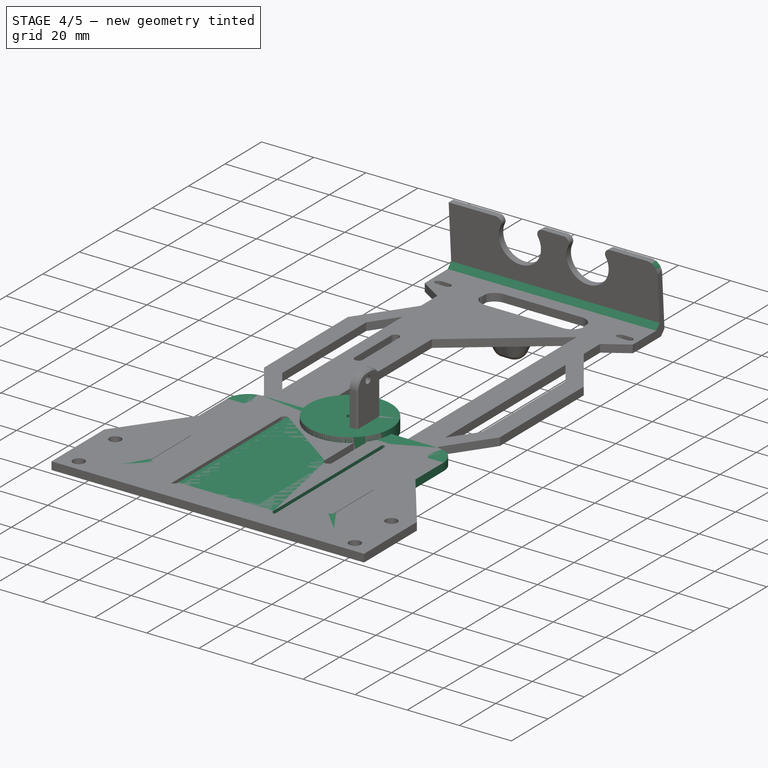
[diagram: stage 4 of 5 — iso view after this stage's code; geometry added in this stage tinted green]
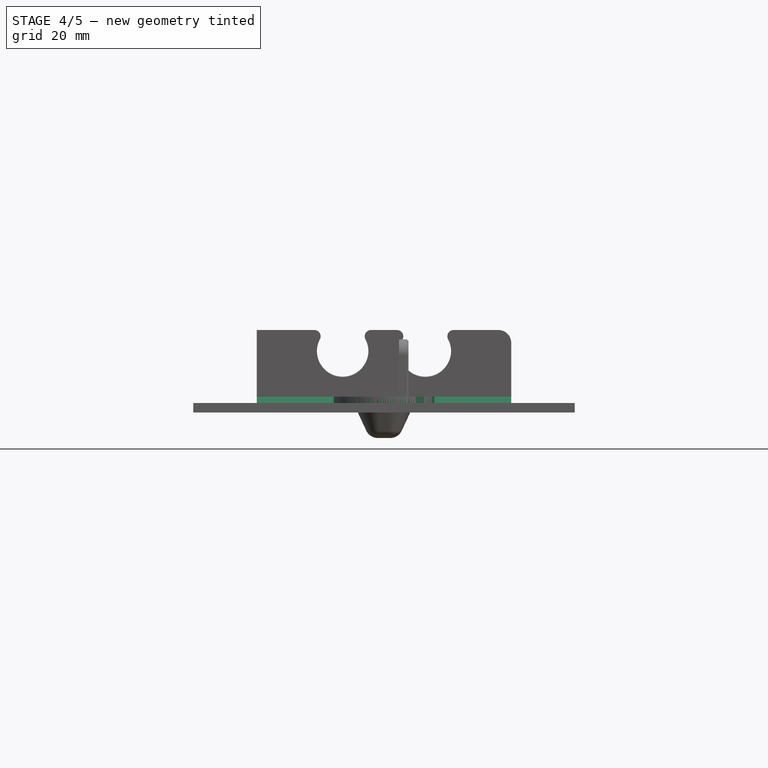
[diagram: stage 4 of 5 — front view after this stage's code; geometry added in this stage tinted green]
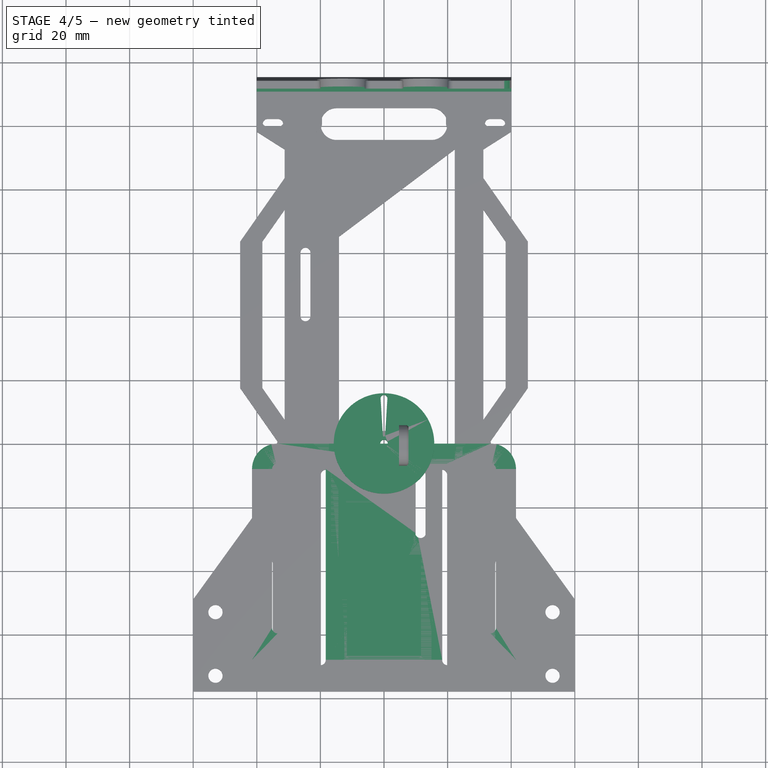
[diagram: stage 4 of 5 — top view after this stage's code; geometry added in this stage tinted green]
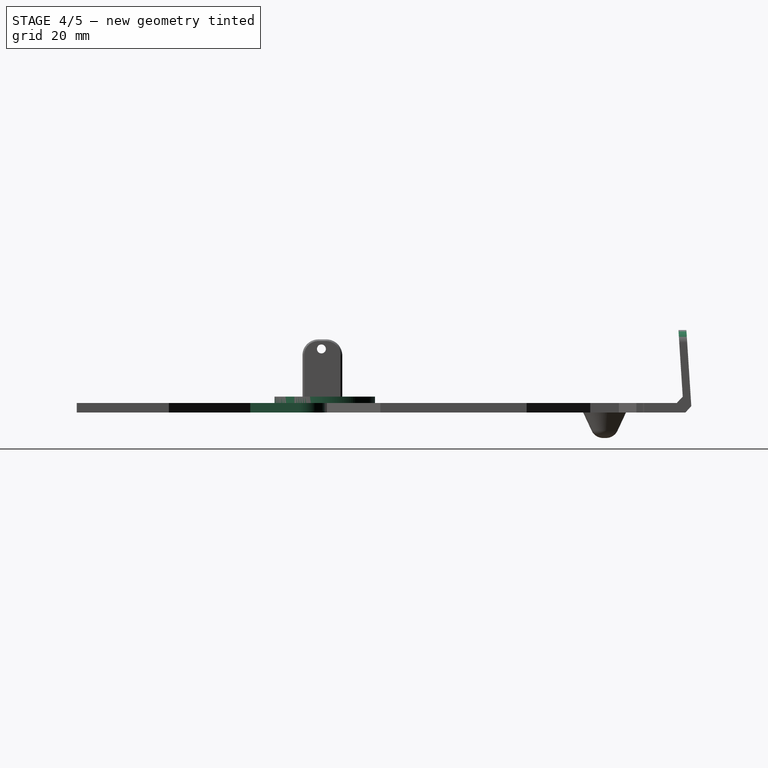
[diagram: stage 4 of 5 — right view after this stage's code; geometry added in this stage tinted green]
FEATURE [PartDesign::Body] Body002  label="ER"
  Group = -> [Sketch002,Pad002,Sketch003,Pocket,PolarPattern]
  Origin = -> Origin002
  Placement = pos=(31,-67,14) rot=(0,1,0;1.5708rad)
  Tip = -> PolarPattern
FEATURE [Sketcher::SketchObject] Sketch004
  MapMode = 5
  Support = -> [XY_Plane003]
  sketch-geometry (2):
    g0: Circle CenterX=0 CenterY=0 CenterZ=0 NormalX=0 NormalY=0 NormalZ=1 AngleXU=0 Radius=15.8
    g1: Circle CenterX=0 CenterY=0 CenterZ=0 NormalX=0 NormalY=0 NormalZ=1 AngleXU=0 Radius=1.2
  constraints (2):
    c: Radius(g0) = 15.8
    c: Radius(g1) = 1.2
FEATURE [PartDesign::Pad] Pad003  label="Pad007"
  Length = 5
  Length2 = 100
  Profile = -> Sketch004
  Type = 0
FEATURE [Sketcher::SketchObject] Sketch005
  MapMode = 5
  Placement = pos=(0,0,5) rot=(0,0,1;0rad)
  Support = -> [Pad003]
  sketch-geometry (4):
    g0: ArcOfCircle CenterX=0 CenterY=2.52529 CenterZ=0 NormalX=0 NormalY=0 NormalZ=1 AngleXU=0 Radius=0.355327 StartAngle=3.2031 EndAngle=6.22168
    g1: ArcOfCircle CenterX=0 CenterY=14.2084 CenterZ=0 NormalX=0 NormalY=0 NormalZ=1 AngleXU=0 Radius=1.07346 StartAngle=6.22168 EndAngle=9.48628
    g2: LineSegment StartX=0.354655 StartY=2.50345 StartZ=0 EndX=1.07143 EndY=14.1424 EndZ=0
    g3: LineSegment StartX=-0.354655 StartY=2.50345 StartZ=0 EndX=-1.07143 EndY=14.1424 EndZ=0
  constraints (6):
    c: Tangent(g0,g3) = 1.5708
    c: Tangent(g0,g2) = -1.5708
    c: Tangent(g2,g1) = -1.5708
    c: Tangent(g3,g1) = 1.5708
    c: PointOnObject(g1,g-2)
    c: PointOnObject(g0,g-2)
FEATURE [PartDesign::Pocket] Pocket001
  BaseFeature = -> Pad003
  Length = 5
  Length2 = 100
  Profile = -> Sketch005
  Type = 0
FEATURE [Sketcher::SketchObject] Sketch007
  MapMode = 5
  Support = -> [XY_Plane004]
  sketch-geometry (32):
    g0: LineSegment StartX=-33.5 StartY=-76 StartZ=0 EndX=33.5 EndY=-76 EndZ=0
    g1: LineSegment StartX=41.5 StartY=-68 StartZ=0 EndX=41.5 EndY=-8 EndZ=0
    g2: LineSegment StartX=33.5 StartY=0 StartZ=0 EndX=-33.5 EndY=0 EndZ=0
    g3: LineSegment StartX=-41.5 StartY=-8 StartZ=0 EndX=-41.5 EndY=-68 EndZ=0
    g4: ArcOfCircle CenterX=11.49 CenterY=-8 CenterZ=0 NormalX=0 NormalY=0 NormalZ=1 AngleXU=0 Radius=1.7 StartAngle=0 EndAngle=3.14159
    g5: ArcOfCircle CenterX=11.49 CenterY=-28 CenterZ=0 NormalX=0 NormalY=0 NormalZ=1 AngleXU=0 Radius=1.7 StartAngle=3.14159 EndAngle=6.28319
    g6: LineSegment StartX=9.79 StartY=-8 StartZ=0 EndX=9.79 EndY=-28 EndZ=0
    g7: LineSegment StartX=13.19 StartY=-8 StartZ=0 EndX=13.19 EndY=-28 EndZ=0
    g8: ArcOfCircle CenterX=20 CenterY=-8 CenterZ=0 NormalX=0 NormalY=0 NormalZ=1 AngleXU=0 Radius=1.7 StartAngle=0 EndAngle=3.14159
    g9: ArcOfCircle CenterX=20 CenterY=-68 CenterZ=0 NormalX=0 NormalY=0 NormalZ=1 AngleXU=0 Radius=1.7 StartAngle=3.14159 EndAngle=6.28319
    g10: LineSegment StartX=18.3 StartY=-8 StartZ=0 EndX=18.3 EndY=-68 EndZ=0
    g11: LineSegment StartX=21.7 StartY=-8 StartZ=0 EndX=21.7 EndY=-68 EndZ=0
    g12: ArcOfCircle CenterX=-20 CenterY=-8 CenterZ=0 NormalX=0 NormalY=0 NormalZ=1 AngleXU=0 Radius=1.7 StartAngle=0 EndAngle=3.14159
    g13: ArcOfCircle CenterX=-20 CenterY=-68 CenterZ=0 NormalX=0 NormalY=0 NormalZ=1 AngleXU=0 Radius=1.7 StartAngle=3.14159 EndAngle=6.28319
    g14: LineSegment StartX=-21.7 StartY=-8 StartZ=0 EndX=-21.7 EndY=-68 EndZ=0
    g15: LineSegment StartX=-18.3 StartY=-8 StartZ=0 EndX=-18.3 EndY=-68 EndZ=0
    g16: ArcOfCircle CenterX=-33.5 CenterY=-8 CenterZ=0 NormalX=0 NormalY=0 NormalZ=1 AngleXU=0 Radius=1.7 StartAngle=0 EndAngle=3.14159
    g17: ArcOfCircle CenterX=-33.5 CenterY=-58 CenterZ=0 NormalX=0 NormalY=0 NormalZ=1 AngleXU=0 Radius=1.7 StartAngle=3.14159 EndAngle=6.28319
    g18: LineSegment StartX=-35.2 StartY=-8 StartZ=0 EndX=-35.2 EndY=-58 EndZ=0
    g19: LineSegment StartX=-31.8 StartY=-8 StartZ=0 EndX=-31.8 EndY=-58 EndZ=0
    g20: ArcOfCircle CenterX=33.5 CenterY=-8 CenterZ=0 NormalX=0 NormalY=0 NormalZ=1 AngleXU=0 Radius=1.7 StartAngle=0 EndAngle=3.14159
    g21: ArcOfCircle CenterX=33.5 CenterY=-58 CenterZ=0 NormalX=0 NormalY=0 NormalZ=1 AngleXU=0 Radius=1.7 StartAngle=3.14159 EndAngle=6.28319
    g22: LineSegment StartX=31.8 StartY=-8 StartZ=0 EndX=31.8 EndY=-58 EndZ=0
    g23: LineSegment StartX=35.2 StartY=-8 StartZ=0 EndX=35.2 EndY=-58 EndZ=0
    g24: ArcOfCircle CenterX=33.5 CenterY=-8 CenterZ=0 NormalX=0 NormalY=0 NormalZ=1 AngleXU=0 Radius=8 StartAngle=-3.2063e-12 EndAngle=1.5708
    g25: ArcOfCircle CenterX=-33.5 CenterY=-8 CenterZ=0 NormalX=0 NormalY=0 NormalZ=1 AngleXU=0 Radius=8 StartAngle=1.5708 EndAngle=3.14159
    g26: ArcOfCircle CenterX=-33.5 CenterY=-68 CenterZ=0 NormalX=0 NormalY=0 NormalZ=1 AngleXU=0 Radius=8 StartAngle=3.14159 EndAngle=4.71239
    g27: ArcOfCircle CenterX=33.5 CenterY=-68 CenterZ=0 NormalX=0 NormalY=0 NormalZ=1 AngleXU=0 Radius=8 StartAngle=4.71239 EndAngle=6.28319
    g28: LineSegment [constr] StartX=-20 StartY=-8 StartZ=0 EndX=20 EndY=-8 EndZ=0
    g29: LineSegment [constr] StartX=20 StartY=-8 StartZ=0 EndX=20 EndY=-68 EndZ=0
    g30: LineSegment [constr] StartX=20 StartY=-68 StartZ=0 EndX=-20 EndY=-68 EndZ=0
    g31: LineSegment [constr] StartX=-20 StartY=-68 StartZ=0 EndX=-20 EndY=-8 EndZ=0
  constraints (78):
    c: Horizontal(g0)
    c: Horizontal(g2)
    c: Vertical(g1)
    c: Vertical(g3)
    c: Tangent(g4,g7) = 1.5708
    c: Tangent(g4,g6) = -1.5708
    c: Tangent(g6,g5) = -1.5708
    c: Tangent(g7,g5) = 1.5708
    c: Vertical(g6)
    c: Equal(g4,g5)
    c: Tangent(g8,g11) = 1.5708
    c: Tangent(g8,g10) = -1.5708
    c: Tangent(g10,g9) = -1.5708
    c: Tangent(g11,g9) = 1.5708
    c: Vertical(g10)
    c: Equal(g8,g9)
    c: Tangent(g12,g15) = 1.5708
    c: Tangent(g12,g14) = -1.5708
    c: Tangent(g14,g13) = -1.5708
    c: Tangent(g15,g13) = 1.5708
    c: Vertical(g14)
    c: Equal(g12,g13)
    c: Tangent(g16,g19) = 1.5708
    c: Tangent(g16,g18) = -1.5708
    c: Tangent(g18,g17) = -1.5708
    c: Tangent(g19,g17) = 1.5708
    c: Vertical(g18)
    c: Equal(g16,g17)
    c: Tangent(g20,g23) = 1.5708
    c: Tangent(g20,g22) = -1.5708
    c: Tangent(g22,g21) = -1.5708
    c: Tangent(g23,g21) = 1.5708
    c: Vertical(g22)
    c: Equal(g20,g21)
    c: Equal(g17,g13)
    c: Equal(g17,g5)
    c: Equal(g17,g9)
    c: Equal(g17,g21)
    c: Radius(g17) = 1.7
    c: Horizontal(g16,g12)
    c: Horizontal(g12,g4)
    c: Horizontal(g21,g17)
    c: Horizontal(g13,g9)
    c: Symmetric(g12,g8,g-2)
    c: Symmetric(g20,g16,g-2)
    c: Tangent(g1,g24) = -1.5708
    c: Tangent(g2,g24) = -1.5708
    c: Tangent(g2,g25) = -1.5708
    c: Tangent(g3,g25) = -1.5708
    c: Tangent(g3,g26) = -1.5708
    c: Tangent(g0,g26) = -1.5708
    c: Tangent(g0,g27) = -1.5708
    c: Tangent(g1,g27) = -1.5708
    c: Equal(g27,g24)
    c: Equal(g24,g25)
    c: Equal(g25,g26)
    c: Radius(g26) = 8
    c: Coincident(g28,g29)
    c: Coincident(g29,g30)
    c: Coincident(g30,g31)
    c: Coincident(g31,g28)
    c: Horizontal(g28)
    c: Horizontal(g30)
    c: Vertical(g29)
    c: Vertical(g31)
    c: Coincident(g29,g9)
    c: Coincident(g12,g28)
    c: Distance(g28) = 40
    c: Distance(g29) = 60
    c: Distance(g23) = 50
    c: Distance(g7) = 20
    c: Horizontal(g16,g3)
    c: Vertical(g16,g2)
    c: Horizontal(g13,g3)
    c: Distance(g8,g4) = 8.51
    c: Distance(g16,g12) = 13.5
    c: Vertical(g2,g20)
    c: PointOnObject(g-1,g2)
FEATURE [PartDesign::Pad] Pad005
  Length = 3
  Length2 = 100
  Profile = -> Sketch007
  Type = 0
FEATURE [PartDesign::Fillet] Fillet003
  Base = -> Fillet002 [Edge48]
  BaseFeature = -> Fillet002
  Placement = pos=(0,0,0) rot=(0.57735,0.57735,0.57735;2.0944rad)
  Radius = 4
FEATURE [PartDesign::Chamfer] Chamfer
  Base = -> Fillet003 [Edge62]
  BaseFeature = -> Fillet003
  Placement = pos=(0,0,0) rot=(0.57735,0.57735,0.57735;2.0944rad)
  Size = 2
FEATURE [PartDesign::Chamfer] Chamfer001
  Base = -> Chamfer [Edge44]
  BaseFeature = -> Chamfer
  Placement = pos=(0,0,0) rot=(0.57735,0.57735,0.57735;2.0944rad)
  Size = 2
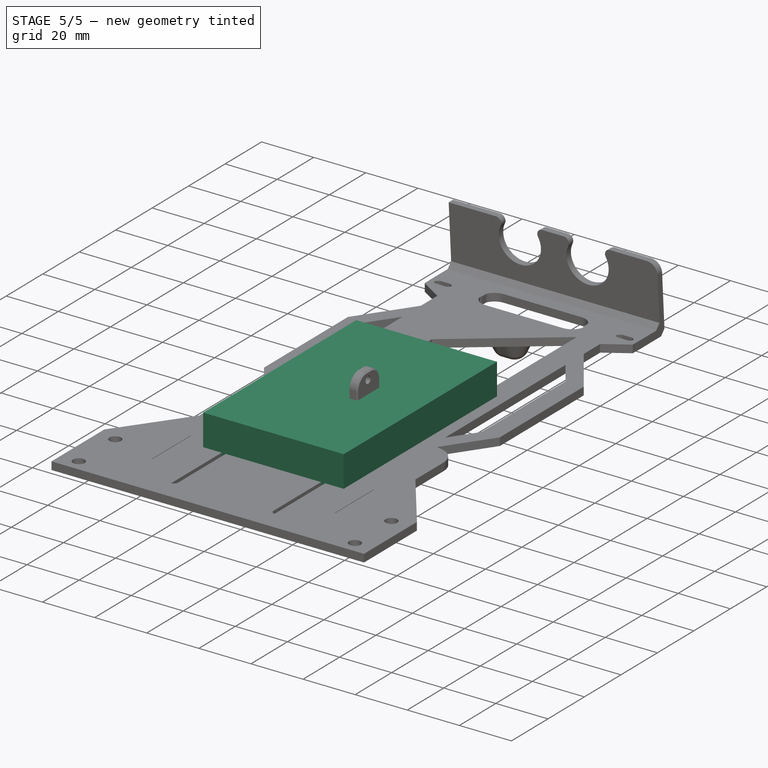
[diagram: stage 5 of 5 — iso view after this stage's code; geometry added in this stage tinted green]
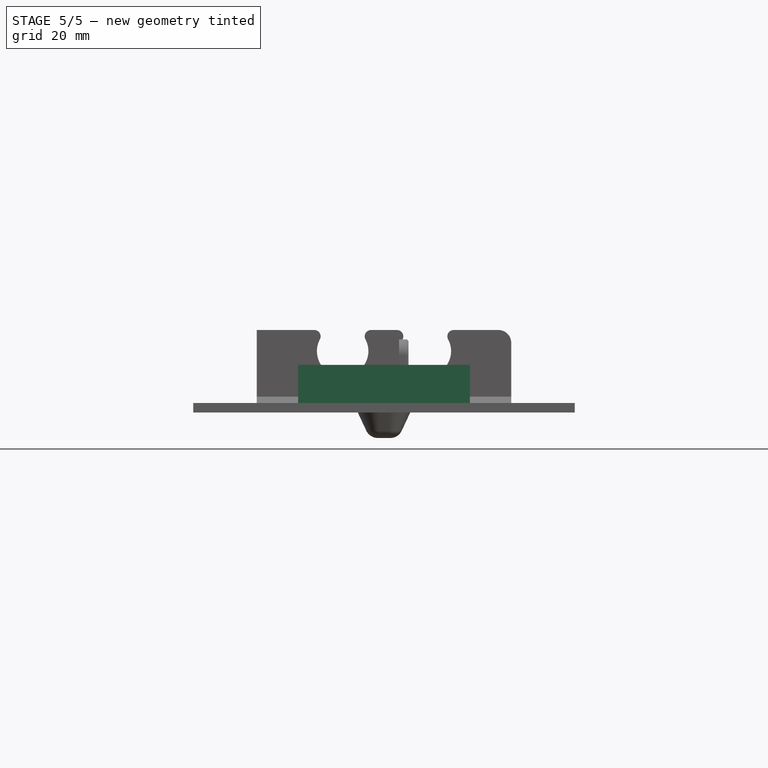
[diagram: stage 5 of 5 — front view after this stage's code; geometry added in this stage tinted green]
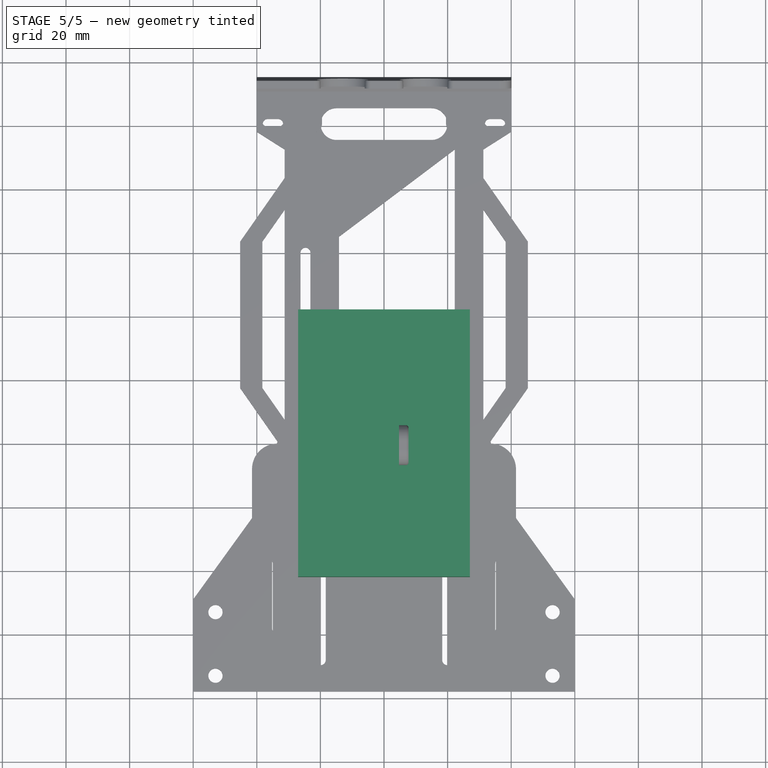
[diagram: stage 5 of 5 — top view after this stage's code; geometry added in this stage tinted green]
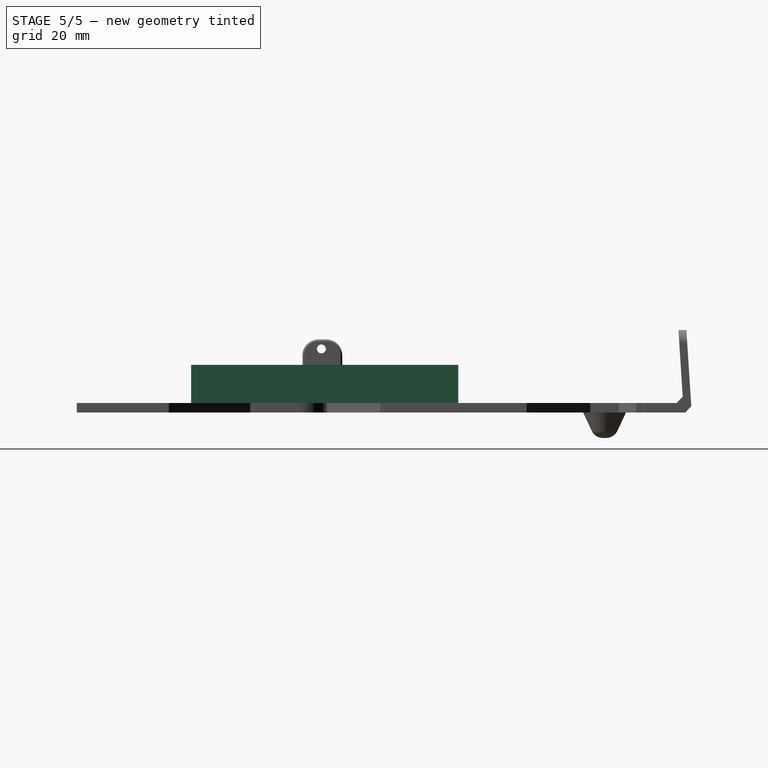
[diagram: stage 5 of 5 — right view after this stage's code; geometry added in this stage tinted green]
FEATURE [Part::Feature] Part__Feature  label="MR"
  Placement = pos=(60,-67,14) rot=(0,-1,0;1.5708rad)
  shape: bbox 36.8 x 70 x 23.85 mm, 28 faces (baked)
FEATURE [Part::Feature] Part__Feature001  label="ML"
  Placement = pos=(-41,-67,14) rot=(0,-1,0;1.5708rad)
  shape: bbox 36.8 x 70 x 23.85 mm, 28 faces (baked)
FEATURE [Sketcher::SketchObject] Sketch001
  MapMode = 5
  Support = -> [XY_Plane001]
  sketch-geometry (4):
    g0: LineSegment StartX=-27 StartY=-42 StartZ=0 EndX=27 EndY=-42 EndZ=0
    g1: LineSegment StartX=27 StartY=-42 StartZ=0 EndX=27 EndY=42 EndZ=0
    g2: LineSegment StartX=27 StartY=42 StartZ=0 EndX=-27 EndY=42 EndZ=0
    g3: LineSegment StartX=-27 StartY=42 StartZ=0 EndX=-27 EndY=-42 EndZ=0
  constraints (10):
    c: Coincident(g0,g1)
    c: Coincident(g1,g2)
    c: Coincident(g2,g3)
    c: Coincident(g3,g0)
    c: Horizontal(g2)
    c: Vertical(g3)
    c: Distance(g0) = 54
    c: Distance(g1) = 84
    c: Symmetric(g0,g0,g-2)
    c: Symmetric(g0,g1,g-1)
FEATURE [PartDesign::Pad] Pad001
  Length = 15
  Length2 = 100
  Profile = -> Sketch001
  Type = 0
FEATURE [PartDesign::Body] Body001  label="BB"
  Group = -> [Sketch001,Pad001]
  Origin = -> Origin001
  Placement = pos=(7,40,3) rot=(0,0,1;0rad)
  Tip = -> Pad001
FEATURE [Part::Feature] Part__Feature002  label="TivaC"
  Placement = pos=(27.5,-31,33) rot=(0,0,1;1.5708rad)
  shape: bbox 55.88 x 125.5 x 22.35 mm, 61 faces (baked)
FEATURE [Part::Feature] Part__Feature003  label="RL"
  Placement = pos=(-62,-67,14) rot=(0,-1,0;1.5708rad)
  shape: bbox 10 x 60 x 60 mm, 36 faces (baked)
FEATURE [Part::Feature] Part__Feature004  label="RR"
  Placement = pos=(63,-67,14) rot=(0,1,0;1.5708rad)
  shape: bbox 10 x 60 x 60 mm, 36 faces (baked)
FEATURE [Sketcher::SketchObject] Sketch002
  MapMode = 5
  Support = -> [XY_Plane002]
  sketch-geometry (2):
    g0: Circle CenterX=0 CenterY=0 CenterZ=0 NormalX=0 NormalY=0 NormalZ=1 AngleXU=0 Radius=15.8
    g1: Circle CenterX=0 CenterY=0 CenterZ=0 NormalX=0 NormalY=0 NormalZ=1 AngleXU=0 Radius=1.2
  constraints (2):
    c: Radius(g0) = 15.8
    c: Radius(g1) = 1.2
FEATURE [PartDesign::Pad] Pad002  label="Pad006"
  Length = 5
  Length2 = 100
  Profile = -> Sketch002
  Type = 0
FEATURE [Sketcher::SketchObject] Sketch003
  MapMode = 5
  Placement = pos=(0,0,5) rot=(0,0,1;0rad)
  Support = -> [Pad002]
  sketch-geometry (4):
    g0: ArcOfCircle CenterX=0 CenterY=2.52529 CenterZ=0 NormalX=0 NormalY=0 NormalZ=1 AngleXU=0 Radius=0.355327 StartAngle=3.2031 EndAngle=6.22168
    g1: ArcOfCircle CenterX=0 CenterY=14.2084 CenterZ=0 NormalX=0 NormalY=0 NormalZ=1 AngleXU=0 Radius=1.07346 StartAngle=6.22168 EndAngle=9.48628
    g2: LineSegment StartX=0.354655 StartY=2.50345 StartZ=0 EndX=1.07143 EndY=14.1424 EndZ=0
    g3: LineSegment StartX=-0.354655 StartY=2.50345 StartZ=0 EndX=-1.07143 EndY=14.1424 EndZ=0
  constraints (6):
    c: Tangent(g0,g3) = 1.5708
    c: Tangent(g0,g2) = -1.5708
    c: Tangent(g2,g1) = -1.5708
    c: Tangent(g3,g1) = 1.5708
    c: PointOnObject(g1,g-2)
    c: PointOnObject(g0,g-2)
FEATURE [PartDesign::Pocket] Pocket
  BaseFeature = -> Pad002
  Length = 5
  Length2 = 100
  Profile = -> Sketch003
  Type = 0
FEATURE [PartDesign::PolarPattern] PolarPattern  label="PolarPattern002"
  Angle = 360
  Axis = -> Z_Axis002
  BaseFeature = -> Pocket
  Occurrences = 12
  Originals = -> [Pocket]
FEATURE [PartDesign::PolarPattern] PolarPattern001  label="PolarPattern003"
  Angle = 360
  Axis = -> Z_Axis003
  BaseFeature = -> Pocket001
  Occurrences = 12
  Originals = -> [Pocket001]
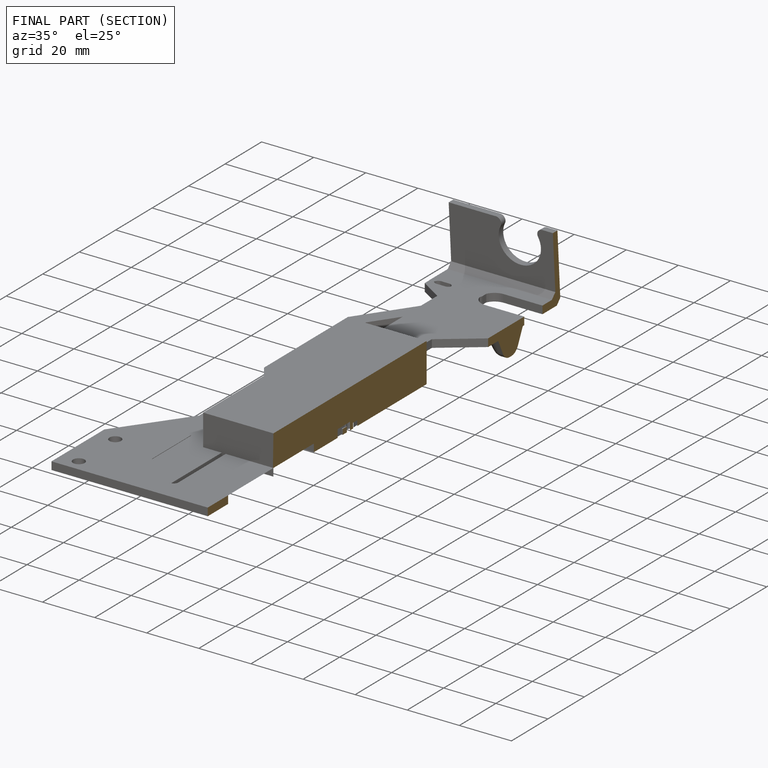
[diagram: finished part — half-section view (interior)]
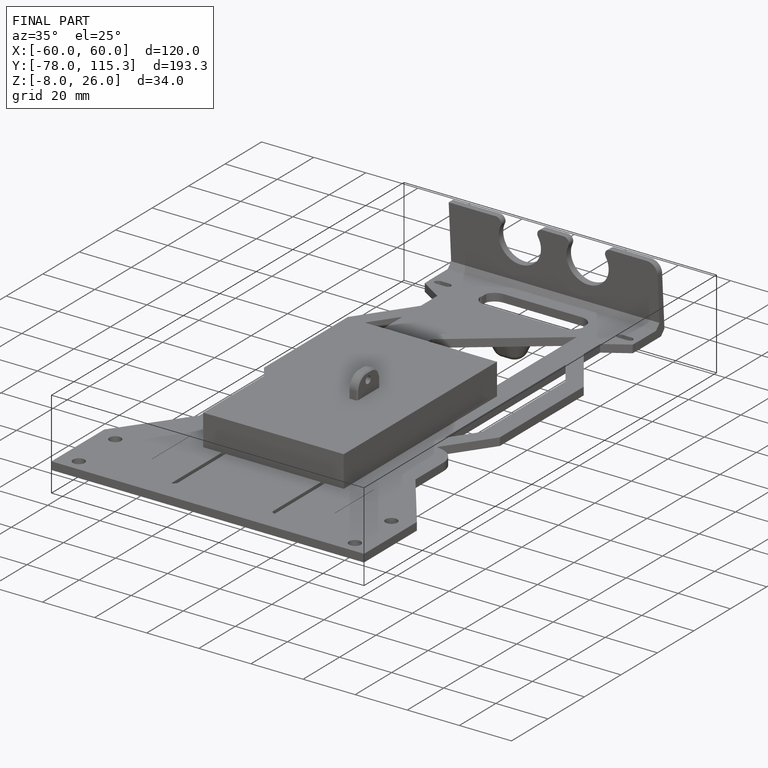
[diagram: finished part — iso view with bounding-box wireframe]
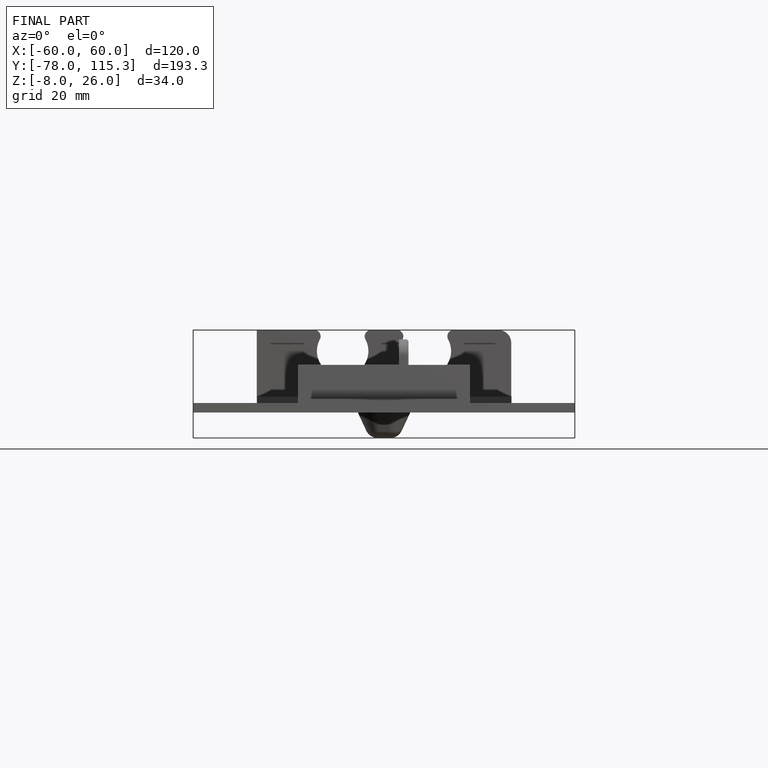
[diagram: finished part — front view with bounding-box wireframe]
